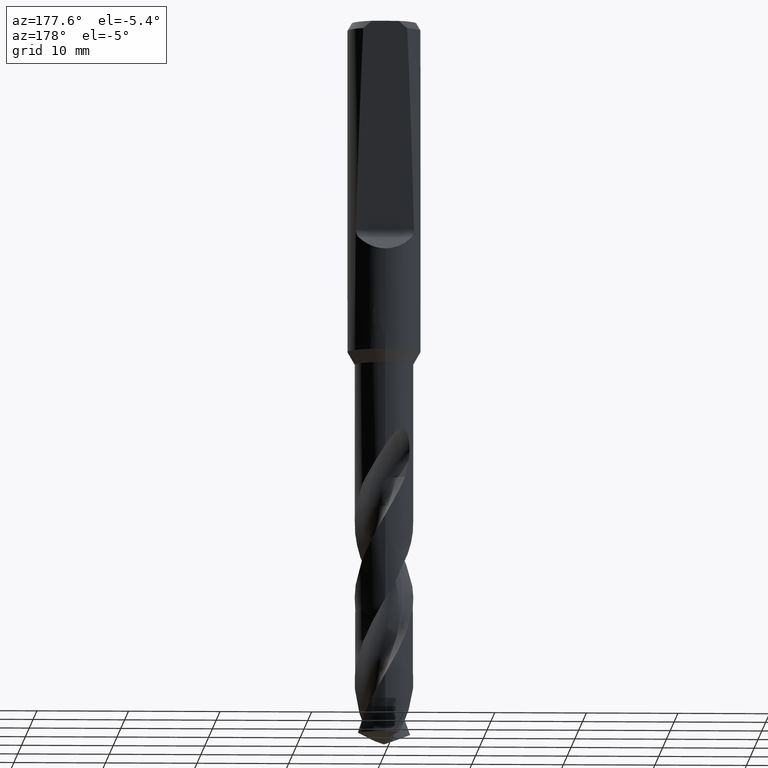
[diagram: clean part render]
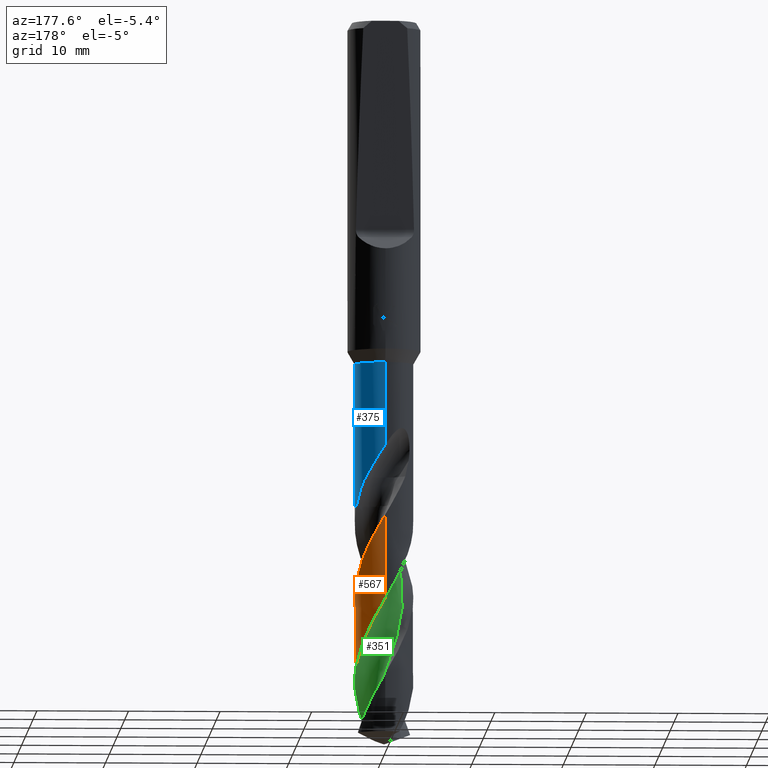
[diagram: same view with three faces highlighted in distinct colors, each labeled with its STEP entity id]
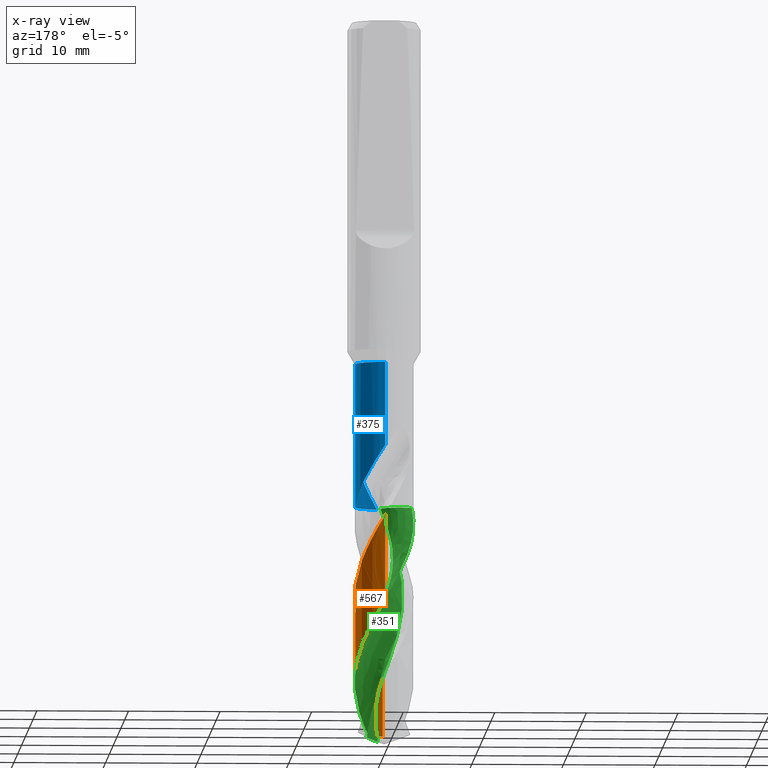
[diagram: x-ray of the same camera — body ghosted, the three highlighted faces saturated]
A machine part, auxiliary view with three faces highlighted in distinct colors.
The next image is the same camera in x-ray (body ghosted, the three faces saturated) — at least one of them is partly hidden behind the body in this view.
Their STEP definitions:

[orange] entity #567 — the highlighted conical surface has half-angle 0 deg.
#315=EDGE_CURVE('',#421,#663,#878,.T.);
#345=VERTEX_POINT('',#909);
#421=VERTEX_POINT('',#995);
#425=VERTEX_POINT('',#999);
#567=ADVANCED_FACE('',(#1154),#1155,.T.);
#647=EDGE_CURVE('',#345,#727,#1241,.T.);
#663=VERTEX_POINT('',#1259);
#707=EDGE_CURVE('',#421,#727,#1308,.T.);
#727=VERTEX_POINT('',#1328);
#803=EDGE_CURVE('',#345,#425,#1414,.T.);
#845=EDGE_CURVE('',#425,#663,#1459,.T.);
#878=B_SPLINE_CURVE_WITH_KNOTS('',3,(#1517,#1518,#1519,#1520,#1521,#1522,#1523,#1524,#1525,#1526,#1527,#1528,#1529,#1530,#1531,#1532,#1533,#1534,#1535,#1536,#1537,#1538,#1539,#1540,#1541,#1542,#1543,#1544,#1545,#1546,#1547,#1548,#1549,#1550,#1551,#1552,#1553,#1554,#1555,#1556,#1557,#1558,#1559,#1560,#1561,#1562,#1563,#1564,#1565,#1566,#1567,#1568,#1569,#1570,#1571,#1572),.UNSPECIFIED.,.F.,.F.,(4,2,2,2,2,2,2,2,2,2,2,2,2,2,2,2,2,2,2,2,2,2,2,2,2,2,2,4),(0.0,0.813135742674374,2.13053202998505,3.36430138883833,4.6047029717339,4.91015056957751,6.20430294889173,7.44521724852457,8.6823700772728,9.29613997921767,10.526970809379,11.7636191954917,13.0026054085505,13.6131402757504,14.846574973993,16.0782186525708,17.3188909090261,17.6233969685484,18.8514861820819,20.0916008174548,21.1629190742,22.1007487217106,22.9232671948386,24.3682178203722,25.4502440410329,26.2625478373165,27.4812539786613,28.7014202609204),.UNSPECIFIED.);
#909=CARTESIAN_POINT('',(1.56506095468349,-2.79116180256989,-77.8352952503482));
#995=CARTESIAN_POINT('',(1.88540665040708E-012,3.19990446080199,-54.1078533435553));
#999=CARTESIAN_POINT('',(3.91874033223161E-016,-3.2,-77.8352952503482));
#1154=FACE_OUTER_BOUND('',#4556,.T.);
#1155=CONICAL_SURFACE('',#4557,3.19995,4.0265275283276E-006);
#1241=B_SPLINE_CURVE_WITH_KNOTS('',3,(#5141,#5142,#5143,#5144,#5145,#5146,#5147,#5148,#5149,#5150,#5151,#5152,#5153,#5154,#5155,#5156,#5157,#5158,#5159,#5160,#5161,#5162,#5163,#5164,#5165,#5166,#5167,#5168,#5169,#5170,#5171,#5172,#5173,#5174,#5175,#5176,#5177,#5178,#5179,#5180,#5181,#5182,#5183,#5184,#5185,#5186,#5187,#5188,#5189,#5190,#5191,#5192,#5193,#5194,#5195,#5196,#5197,#5198),.UNSPECIFIED.,.F.,.F.,(4,2,2,2,2,2,2,2,2,2,2,2,2,2,2,2,2,2,2,2,2,2,2,2,2,2,2,2,4),(0.0,1.74940168802376,2.37102620344011,3.44891704909201,4.69060824313609,5.30911320623194,6.3615110119511,7.41395978823827,8.46742254103685,9.52095837339549,10.5754969390482,11.6301060499284,12.6856990762849,13.741427591656,14.7980984140047,15.8550222059876,16.9128409266213,17.441619087609,18.0408822280805,19.113276263985,20.1778847368928,21.254492548873,22.1964602354034,23.8503936351746,24.1598024192766,25.3250618430312,27.0717461056621,27.5091163977221,28.8156616674271),.UNSPECIFIED.);
#1259=CARTESIAN_POINT('',(1.37404529048283E-014,-3.19997447921192,-71.4971321811094));
#1308=LINE('',#5642,#5643);
#1328=CARTESIAN_POINT('',(2.46839838348566E-015,3.19994135975014,-63.2718160608587));
#1414=CIRCLE('',#7222,3.2);
#1459=LINE('',#7537,#7538);
#1517=CARTESIAN_POINT('',(-0.633612031397591,3.13654202994907,-53.0039570376097));
#1518=CARTESIAN_POINT('',(-0.50047796357747,3.16343737154317,-53.2385151046422));
#1519=CARTESIAN_POINT('',(-0.365937555210257,3.18179408635589,-53.4730731272108));
#1520=CARTESIAN_POINT('',(-0.0119156544872241,3.20740031506806,-54.088022288053));
#1521=CARTESIAN_POINT('',(0.20820646837728,3.20068307892087,-54.4666158408988));
#1522=CARTESIAN_POINT('',(0.630117546202206,3.14400262747359,-55.2025188393893));
#1523=CARTESIAN_POINT('',(0.83092762292468,3.09697862783589,-55.5578187479544));
#1524=CARTESIAN_POINT('',(1.22156998396136,2.96478640225245,-56.2717434211333));
#1525=CARTESIAN_POINT('',(1.41063537371222,2.87965303516914,-56.6286651101419));
#1526=CARTESIAN_POINT('',(1.63447523699915,2.75146387891423,-57.0745455465356));
#1527=CARTESIAN_POINT('',(1.67808202289325,2.7250879090107,-57.1626040847284));
#1528=CARTESIAN_POINT('',(1.90303442190992,2.58157759655928,-57.6240886503157));
#1529=CARTESIAN_POINT('',(2.07283759159168,2.44733475043842,-57.997038360358));
#1530=CARTESIAN_POINT('',(2.37643084034072,2.15289156114255,-58.7284688051675));
#1531=CARTESIAN_POINT('',(2.51066002040579,1.99472153052069,-59.0853480477501));
#1532=CARTESIAN_POINT('',(2.74628266313385,1.65530013615568,-59.8004824108073));
#1533=CARTESIAN_POINT('',(2.84730484473702,1.47479612219902,-60.1566835017866));
#1534=CARTESIAN_POINT('',(2.9714162444862,1.19194578288655,-60.6906829820841));
#1535=CARTESIAN_POINT('',(3.00803008758397,1.09626462377836,-60.8675697365068));
#1536=CARTESIAN_POINT('',(3.10407743390568,0.804001446026781,-61.3998991161258));
#1537=CARTESIAN_POINT('',(3.1492710431214,0.60321001139205,-61.7545612575885));
#1538=CARTESIAN_POINT('',(3.20066989425852,0.194681058057243,-62.4665607782773));
#1539=CARTESIAN_POINT('',(3.20655535325835,-0.0120106267127466,-62.8223921092555));
#1540=CARTESIAN_POINT('',(3.17846450155753,-0.423891804206506,-63.5369185203465));
#1541=CARTESIAN_POINT('',(3.1444684212994,-0.628267762146334,-63.8936072704662));
#1542=CARTESIAN_POINT('',(3.06459508627317,-0.926442023419833,-64.4272644337027));
#1543=CARTESIAN_POINT('',(3.03355290861798,-1.02351544066002,-64.6033068101128));
#1544=CARTESIAN_POINT('',(2.92602095090124,-1.31163663517767,-65.135519848685));
#1545=CARTESIAN_POINT('',(2.83564814137929,-1.49705005189527,-65.4908554592941));
#1546=CARTESIAN_POINT('',(2.62061157306036,-1.84779586912101,-66.2021904199099));
#1547=CARTESIAN_POINT('',(2.49657152341043,-2.01222111796973,-66.5567703679459));
#1548=CARTESIAN_POINT('',(2.21778844500692,-2.31602177747876,-67.270377328585));
#1549=CARTESIAN_POINT('',(2.06337610996633,-2.45460758959417,-67.6274839157796));
#1550=CARTESIAN_POINT('',(1.85565205230154,-2.6074675634622,-68.0733511415022));
#1551=CARTESIAN_POINT('',(1.81401676654827,-2.63660286758218,-68.1611914269788));
#1552=CARTESIAN_POINT('',(1.60109700943933,-2.77817002037985,-68.6035360379044));
#1553=CARTESIAN_POINT('',(1.41994249151425,-2.87498544368542,-68.9575685746527));
#1554=CARTESIAN_POINT('',(1.03971152394727,-3.03341770468427,-69.6699364817729));
#1555=CARTESIAN_POINT('',(0.841453395702855,-3.09427544110152,-70.0266932818044));
#1556=CARTESIAN_POINT('',(0.463674602862033,-3.17123835116337,-70.6939581470714));
#1557=CARTESIAN_POINT('',(0.285831974313675,-3.1921940749956,-71.0027300353703));
#1558=CARTESIAN_POINT('',(-0.0493513132984552,-3.20342153161308,-71.5825916767762));
#1559=CARTESIAN_POINT('',(-0.205925296305768,-3.19717285052562,-71.8527373441145));
#1560=CARTESIAN_POINT('',(-0.497692962143518,-3.16401421296279,-72.3609309549907));
#1561=CARTESIAN_POINT('',(-0.632916237516406,-3.13976514931146,-72.5982154170917));
#1562=CARTESIAN_POINT('',(-1.00032763527284,-3.04916035905565,-73.2527189460532));
#1563=CARTESIAN_POINT('',(-1.22711367410606,-2.96515907504653,-73.6679695523078));
#1564=CARTESIAN_POINT('',(-1.60335714454745,-2.77519868342497,-74.3975415995269));
#1565=CARTESIAN_POINT('',(-1.75735383903597,-2.6803446791092,-74.7094187616898));
#1566=CARTESIAN_POINT('',(-2.01159822538556,-2.49234642842497,-75.2562016143889));
#1567=CARTESIAN_POINT('',(-2.11537053254113,-2.40489525157113,-75.4903553617051));
#1568=CARTESIAN_POINT('',(-2.3601512574604,-2.17048368351667,-76.0766540745139));
#1569=CARTESIAN_POINT('',(-2.4933448469521,-2.01608943470588,-76.4276228980693));
#1570=CARTESIAN_POINT('',(-2.72881487651725,-1.68376719187941,-77.1314769541711));
#1571=CARTESIAN_POINT('',(-2.83031684824925,-1.50685246163005,-77.4828408488554));
#1572=CARTESIAN_POINT('',(-2.91426680449317,-1.32175980882653,-77.8352952503482));
#4556=EDGE_LOOP('',(#7852,#7853,#7854,#7855,#7856));
#4557=AXIS2_PLACEMENT_3D('',#7857,#7858,#7859);
#5141=CARTESIAN_POINT('',(1.56506095468349,-2.79116180256989,-77.8352952503482));
#5142=CARTESIAN_POINT('',(1.82056189984708,-2.64789492007469,-77.3310740607161));
#5143=CARTESIAN_POINT('',(2.05438092006894,-2.47074181185954,-76.8219938607978));
#5144=CARTESIAN_POINT('',(2.33414642643894,-2.19145117012083,-76.1385492911507));
#5145=CARTESIAN_POINT('',(2.40389641594779,-2.11470504971753,-75.9597086339225));
#5146=CARTESIAN_POINT('',(2.58408359027248,-1.89598379240943,-75.4698593050294));
#5147=CARTESIAN_POINT('',(2.68645992889031,-1.74791315352892,-75.1583103730833));
#5148=CARTESIAN_POINT('',(2.87896756443427,-1.41222183755426,-74.4897578018721));
#5149=CARTESIAN_POINT('',(2.96422838036837,-1.22310901501035,-74.1341824598941));
#5150=CARTESIAN_POINT('',(3.06365742600034,-0.929784271737763,-73.59774888542));
#5151=CARTESIAN_POINT('',(3.09196134040399,-0.830825087158384,-73.4189010878489));
#5152=CARTESIAN_POINT('',(3.15548462487037,-0.559915672692333,-72.9369879420616));
#5153=CARTESIAN_POINT('',(3.1814472356379,-0.386131895075275,-72.635030016988));
#5154=CARTESIAN_POINT('',(3.20459348050442,-0.0356698045718321,-72.0284803303503));
#5155=CARTESIAN_POINT('',(3.20170325226808,0.140009173047971,-71.7242620379302));
#5156=CARTESIAN_POINT('',(3.16728859403223,0.488705151033034,-71.117509501174));
#5157=CARTESIAN_POINT('',(3.13575688889181,0.661579892909078,-70.8155293051259));
#5158=CARTESIAN_POINT('',(3.04452304824646,1.00076334742926,-70.208959334366));
#5159=CARTESIAN_POINT('',(2.98506973878401,1.16611323523204,-69.9047334522484));
#5160=CARTESIAN_POINT('',(2.83992394938294,1.48503742388688,-69.2979677110304));
#5161=CARTESIAN_POINT('',(2.75426869606228,1.63848050176175,-68.9959886150988));
#5162=CARTESIAN_POINT('',(2.55841314516068,1.93005830971772,-68.3894127384954));
#5163=CARTESIAN_POINT('',(2.44876026301433,2.0673613647316,-68.0851840276795));
#5164=CARTESIAN_POINT('',(2.20844728357309,2.32232901119771,-67.4784269154718));
#5165=CARTESIAN_POINT('',(2.07785304139814,2.43989561824326,-67.1764560488737));
#5166=CARTESIAN_POINT('',(1.79836367841916,2.6526296868732,-66.5698839174264));
#5167=CARTESIAN_POINT('',(1.65025499077395,2.74718377092106,-66.2656542495411));
#5168=CARTESIAN_POINT('',(1.34051952094196,2.91091166780714,-65.6589038483797));
#5169=CARTESIAN_POINT('',(1.17897360209985,2.9800230039082,-65.356942006668));
#5170=CARTESIAN_POINT('',(0.845761626127121,3.0911490203371,-64.7503694239527));
#5171=CARTESIAN_POINT('',(0.675038581313684,3.13283283510656,-64.4461424021558));
#5172=CARTESIAN_POINT('',(0.329008847735328,3.18780616580405,-63.8393726333003));
#5173=CARTESIAN_POINT('',(0.153795055210287,3.20106511283419,-63.5374065099696));
#5174=CARTESIAN_POINT('',(-0.109593542663238,3.1992678953613,-63.0825629499984));
#5175=CARTESIAN_POINT('',(-0.197199535802622,3.19505779494631,-62.9311077348302));
#5176=CARTESIAN_POINT('',(-0.383243118265306,3.17845533053852,-62.6074402945216));
#5177=CARTESIAN_POINT('',(-0.48168298426226,3.16503814796274,-62.4349051975114));
#5178=CARTESIAN_POINT('',(-0.754397498166686,3.114822729411,-61.9549025944604));
#5179=CARTESIAN_POINT('',(-0.926467055254245,3.06805735970893,-61.648582934386));
#5180=CARTESIAN_POINT('',(-1.26006970065796,2.94670436348787,-61.0353559238792));
#5181=CARTESIAN_POINT('',(-1.42076026442194,2.87265548920776,-60.7287755507379));
#5182=CARTESIAN_POINT('',(-1.72979750618374,2.69799929479152,-60.114371955214));
#5183=CARTESIAN_POINT('',(-1.87765357813961,2.59728557931954,-59.8070726508925));
#5184=CARTESIAN_POINT('',(-2.13783725893071,2.38613139392148,-59.2282153790665));
#5185=CARTESIAN_POINT('',(-2.25170632315744,2.27895623679355,-58.9572400202705));
#5186=CARTESIAN_POINT('',(-2.54229215178517,1.96244467854776,-58.2130528193486));
#5187=CARTESIAN_POINT('',(-2.70065781441417,1.73801431109222,-57.7445569685405));
#5188=CARTESIAN_POINT('',(-2.85243423447385,1.45110413712884,-57.1817217061234));
#5189=CARTESIAN_POINT('',(-2.87523175904423,1.40539003383664,-57.0929359044713));
#5190=CARTESIAN_POINT('',(-2.97871463469696,1.1848120737115,-56.6703095697937));
#5191=CARTESIAN_POINT('',(-3.04472566843683,1.00320623749308,-56.338457245988));
#5192=CARTESIAN_POINT('',(-3.16790632688852,0.536351853862689,-55.5051538144765));
#5193=CARTESIAN_POINT('',(-3.20341276277142,0.247728273522946,-55.0042894594526));
#5194=CARTESIAN_POINT('',(-3.19868742946261,-0.114233325452999,-54.3791705181686));
#5195=CARTESIAN_POINT('',(-3.19527871722528,-0.186652137422215,-54.2541573153644));
#5196=CARTESIAN_POINT('',(-3.17189644008454,-0.474686414451072,-53.755075640491));
#5197=CARTESIAN_POINT('',(-3.13263748342002,-0.687484608067484,-53.3777290260439));
#5198=CARTESIAN_POINT('',(-3.07220929770677,-0.894924670593775,-53.0048489841364));
#5642=CARTESIAN_POINT('',(-3.9227480931991E-016,3.19995,-65.4176476251741));
#5643=VECTOR('',#8009,1.0);
#7222=AXIS2_PLACEMENT_3D('',#8106,#8107,#8108);
#7537=CARTESIAN_POINT('',(3.91461011062873E-016,-3.19995,-65.4176476251741));
#7538=VECTOR('',#8141,1.0);
#7852=ORIENTED_EDGE('',*,*,#707,.F.);
#7853=ORIENTED_EDGE('',*,*,#315,.T.);
#7854=ORIENTED_EDGE('',*,*,#845,.F.);
#7855=ORIENTED_EDGE('',*,*,#803,.F.);
#7856=ORIENTED_EDGE('',*,*,#647,.T.);
#7857=CARTESIAN_POINT('',(0.0,0.0,-65.4176476251741));
#7858=DIRECTION('',(0.0,-0.0,-1.0));
#7859=DIRECTION('',(0.0,1.0,0.0));
#8009=DIRECTION('',(-4.93091119501737E-022,4.02652752831672E-006,-0.999999999991894));
#8106=CARTESIAN_POINT('',(0.0,0.0,-77.8352952503482));
#8107=DIRECTION('',(0.0,0.0,-1.0));
#8108=DIRECTION('',(0.0,1.0,0.0));
#8141=DIRECTION('',(-4.93091119501737E-022,4.02652752831672E-006,0.999999999991894));

[blue] entity #375 — the highlighted cylindrical surface (edge-blend (fillet) strip) has radius 3.2 mm, axis along (-0, -0, 1).
#309=VERTEX_POINT('',#872);
#327=EDGE_CURVE('',#455,#517,#890,.T.);
#329=VERTEX_POINT('',#892);
#375=ADVANCED_FACE('',(#944),#945,.T.);
#411=EDGE_CURVE('',#329,#523,#985,.T.);
#443=EDGE_CURVE('',#509,#517,#1019,.T.);
#451=EDGE_CURVE('',#523,#661,#1028,.T.);
#455=VERTEX_POINT('',#1033);
#479=VERTEX_POINT('',#1058);
#509=VERTEX_POINT('',#1091);
#517=VERTEX_POINT('',#1099);
#523=VERTEX_POINT('',#1107);
#545=EDGE_CURVE('',#479,#329,#1132,.T.);
#575=EDGE_CURVE('',#455,#309,#1163,.T.);
#593=EDGE_CURVE('',#479,#309,#1183,.T.);
#635=EDGE_CURVE('',#713,#661,#1228,.T.);
#661=VERTEX_POINT('',#1257);
#713=VERTEX_POINT('',#1314);
#833=EDGE_CURVE('',#713,#509,#1445,.T.);
#872=CARTESIAN_POINT('',(3.91874033223161E-016,-3.2,-37.3856406460551));
#890=LINE('',#1595,#1596);
#892=CARTESIAN_POINT('',(2.60365492250826,-1.86037121147864,-48.0911432665525));
#944=FACE_OUTER_BOUND('',#2994,.T.);
#945=CYLINDRICAL_SURFACE('',#2995,3.2);
#985=B_SPLINE_CURVE_WITH_KNOTS('',3,(#3474,#3475,#3476,#3477),.UNSPECIFIED.,.F.,.F.,(4,4),(0.0,1.8391036855062),.UNSPECIFIED.);
#1019=B_SPLINE_CURVE_WITH_KNOTS('',3,(#3532,#3533,#3534,#3535,#3536,#3537,#3538,#3539,#3540,#3541,#3542,#3543,#3544,#3545,#3546,#3547,#3548,#3549,#3550,#3551,#3552,#3553,#3554,#3555,#3556,#3557,#3558,#3559,#3560,#3561),.UNSPECIFIED.,.F.,.F.,(4,2,2,2,2,2,2,2,2,2,2,2,2,2,4),(0.0,1.56782231376,2.42388938405478,3.19927080225604,4.10007757764711,5.18215244997258,6.12000526879567,6.5450079156102,6.85563302697524,7.14957522535136,7.52245842678693,8.06800167476919,8.84355554515743,9.35107348326668,9.88444037118558),.UNSPECIFIED.);
#1028=B_SPLINE_CURVE_WITH_KNOTS('',3,(#3585,#3586,#3587,#3588,#3589,#3590,#3591,#3592),.UNSPECIFIED.,.F.,.F.,(4,2,2,4),(0.0,0.784464466970107,1.49816144602488,3.29542581585252),.UNSPECIFIED.);
#1033=CARTESIAN_POINT('',(0.0,3.2,-37.3856406460551));
#1058=CARTESIAN_POINT('',(9.49214578466195E-013,-3.2,-46.4418682923582));
#1091=CARTESIAN_POINT('',(2.03908941204373,2.46619430898929,-49.8434));
#1099=CARTESIAN_POINT('',(-9.47882310836645E-013,3.2,-46.4418682923582));
#1107=CARTESIAN_POINT('',(2.22424749566831,-2.30059189731975,-49.8434));
#1132=B_SPLINE_CURVE_WITH_KNOTS('',3,(#4375,#4376,#4377,#4378,#4379,#4380,#4381,#4382,#4383,#4384,#4385,#4386,#4387,#4388,#4389,#4390,#4391,#4392,#4393,#4394,#4395,#4396,#4397,#4398,#4399,#4400,#4401,#4402,#4403,#4404),.UNSPECIFIED.,.F.,.F.,(4,2,2,2,2,2,2,2,2,2,2,2,2,2,4),(0.0,1.56782231376001,2.4238893840547,3.1992708022558,4.10007757764716,5.18215244997313,6.12000526879655,6.54500791561114,6.85563302697629,7.14957522535255,7.52245842678827,8.06800167477267,8.84355554516768,9.35107348328173,9.88444037120564),.UNSPECIFIED.);
#1163=CIRCLE('',#4574,3.2);
#1183=LINE('',#4595,#4596);
#1228=CIRCLE('',#4873,3.2);
#1257=CARTESIAN_POINT('',(0.63588482973571,-3.1361840640039,-53.0));
#1314=CARTESIAN_POINT('',(3.07150665534225,0.897689738266098,-53.0));
#1445=B_SPLINE_CURVE_WITH_KNOTS('',3,(#7511,#7512,#7513,#7514,#7515,#7516,#7517,#7518,#7519,#7520),.UNSPECIFIED.,.F.,.F.,(4,2,2,2,4),(0.0,1.85208206593052,2.44590199487501,2.92950370821524,3.35211331927707),.UNSPECIFIED.);
#1595=CARTESIAN_POINT('',(-3.91874033223161E-016,3.2,-45.1928203230275));
#1596=VECTOR('',#7555,1.0);
#2994=EDGE_LOOP('',(#7625,#7626,#7627,#7628,#7629,#7630,#7631,#7632,#7633));
#2995=AXIS2_PLACEMENT_3D('',#7634,#7635,#7636);
#3474=CARTESIAN_POINT('',(2.60365492256088,-1.86037121140499,-48.0911432665814));
#3475=CARTESIAN_POINT('',(2.50048955998773,-2.0047547637061,-48.6779325573791));
#3476=CARTESIAN_POINT('',(2.3761477232539,-2.15373242989646,-49.2682138070278));
#3477=CARTESIAN_POINT('',(2.22424749566831,-2.30059189731975,-49.8434));
#3532=CARTESIAN_POINT('',(2.03908941204373,2.46619430898929,-49.8434));
#3533=CARTESIAN_POINT('',(1.82800567805744,2.64072176023562,-49.3983130869401));
#3534=CARTESIAN_POINT('',(1.58530715369426,2.79586454757279,-48.983348576287));
#3535=CARTESIAN_POINT('',(1.16211325690762,2.98602454372156,-48.2901219086283));
#3536=CARTESIAN_POINT('',(1.00982828565799,3.04072636046146,-48.0462215655824));
#3537=CARTESIAN_POINT('',(0.715023821655987,3.122480120881,-47.5740936955324));
#3538=CARTESIAN_POINT('',(0.573820631320099,3.1513635316966,-47.3480668416116));
#3539=CARTESIAN_POINT('',(0.268175200748505,3.19304942932217,-46.8609189318241));
#3540=CARTESIAN_POINT('',(0.101179909619378,3.20283613125281,-46.5959847266246));
#3541=CARTESIAN_POINT('',(-0.269673865903409,3.1950353626123,-46.0292030328951));
#3542=CARTESIAN_POINT('',(-0.489552675420427,3.17090772647207,-45.7066980519819));
#3543=CARTESIAN_POINT('',(-0.913560527382516,3.07346880415289,-45.1749095931623));
#3544=CARTESIAN_POINT('',(-1.1481471079517,2.9992326530209,-44.9154176372088));
#3545=CARTESIAN_POINT('',(-1.50319157987628,2.82763812479161,-44.6724295722979));
#3546=CARTESIAN_POINT('',(-1.62071363798307,2.76285725044015,-44.6123775031602));
#3547=CARTESIAN_POINT('',(-1.82663930203465,2.62947183507241,-44.5662467612278));
#3548=CARTESIAN_POINT('',(-1.91110098015603,2.56872711588606,-44.5653853979539));
#3549=CARTESIAN_POINT('',(-2.06841541691173,2.44360567542679,-44.6057594451824));
#3550=CARTESIAN_POINT('',(-2.13721690172617,2.38317451791265,-44.6436136909456));
#3551=CARTESIAN_POINT('',(-2.27722715935141,2.25074435739277,-44.7620552641219));
#3552=CARTESIAN_POINT('',(-2.34200224069986,2.18211572470508,-44.8495030551746));
#3553=CARTESIAN_POINT('',(-2.47468255117505,2.03226008390363,-45.0889622599872));
#3554=CARTESIAN_POINT('',(-2.53810109542421,1.95065296980375,-45.2665702252403));
#3555=CARTESIAN_POINT('',(-2.65735732010007,1.78678691936196,-45.7634975594316));
#3556=CARTESIAN_POINT('',(-2.70047120201694,1.71698786927453,-46.1174025482044));
#3557=CARTESIAN_POINT('',(-2.72181085940623,1.68285447465253,-46.7723943380162));
#3558=CARTESIAN_POINT('',(-2.71679327525594,1.69117410393097,-47.0332449366901));
#3559=CARTESIAN_POINT('',(-2.68135347056868,1.74685067707177,-47.5626413200452));
#3560=CARTESIAN_POINT('',(-2.64970993141206,1.7959156071892,-47.829194490778));
#3561=CARTESIAN_POINT('',(-2.60365492250826,1.86037121147864,-48.0911432665525));
#3585=CARTESIAN_POINT('',(2.2242474956683,-2.30059189731975,-49.8434));
#3586=CARTESIAN_POINT('',(2.13494642048418,-2.38692954506605,-50.0735025512708));
#3587=CARTESIAN_POINT('',(2.03789861191544,-2.47107584600038,-50.304722016858));
#3588=CARTESIAN_POINT('',(1.82638447958038,-2.63063688784129,-50.7565361037738));
#3589=CARTESIAN_POINT('',(1.7189974749625,-2.70256703984752,-50.9724619803909));
#3590=CARTESIAN_POINT('',(1.3010133127431,-2.94392907639697,-51.8020229385631));
#3591=CARTESIAN_POINT('',(0.975236455265601,-3.06737797793982,-52.4020631832931));
#3592=CARTESIAN_POINT('',(0.63588482973574,-3.13618406400388,-53.0));
#4375=CARTESIAN_POINT('',(-2.03908941204373,-2.46619430898929,-49.8434));
#4376=CARTESIAN_POINT('',(-1.82800567805744,-2.64072176023561,-49.3983130869401));
#4377=CARTESIAN_POINT('',(-1.58530715369426,-2.79586454757279,-48.983348576287));
#4378=CARTESIAN_POINT('',(-1.16211325690765,-2.98602454372155,-48.2901219086283));
#4379=CARTESIAN_POINT('',(-1.00982828565803,-3.04072636046145,-48.0462215655825));
#4380=CARTESIAN_POINT('',(-0.715023821655965,-3.122480120881,-47.5740936955324));
#4381=CARTESIAN_POINT('',(-0.573820631320053,-3.1513635316966,-47.3480668416116));
#4382=CARTESIAN_POINT('',(-0.268175200748478,-3.19304942932217,-46.860918931824));
#4383=CARTESIAN_POINT('',(-0.101179909619363,-3.2028361312528,-46.5959847266246));
#4384=CARTESIAN_POINT('',(0.269673865903414,-3.1950353626123,-46.0292030328951));
#4385=CARTESIAN_POINT('',(0.489552675420427,-3.17090772647206,-45.7066980519819));
#4386=CARTESIAN_POINT('',(0.913560527382492,-3.07346880415289,-45.1749095931624));
#4387=CARTESIAN_POINT('',(1.1481471079517,-2.99923265302091,-44.9154176372088));
#4388=CARTESIAN_POINT('',(1.50319157987626,-2.82763812479162,-44.672429572298));
#4389=CARTESIAN_POINT('',(1.62071363798306,-2.76285725044016,-44.6123775031602));
#4390=CARTESIAN_POINT('',(1.82663930203468,-2.62947183507239,-44.5662467612278));
#4391=CARTESIAN_POINT('',(1.91110098015605,-2.56872711588605,-44.5653853979539));
#4392=CARTESIAN_POINT('',(2.06841541691173,-2.44360567542679,-44.6057594451824));
#4393=CARTESIAN_POINT('',(2.13721690172617,-2.38317451791265,-44.6436136909457));
#4394=CARTESIAN_POINT('',(2.2772271593514,-2.25074435739278,-44.7620552641219));
#4395=CARTESIAN_POINT('',(2.34200224069985,-2.18211572470509,-44.8495030551746));
#4396=CARTESIAN_POINT('',(2.47468255117535,-2.03226008390329,-45.0889622599878));
#4397=CARTESIAN_POINT('',(2.53810109542441,-1.95065296980348,-45.2665702252411));
#4398=CARTESIAN_POINT('',(2.65735732010013,-1.78678691936188,-45.7634975594319));
#4399=CARTESIAN_POINT('',(2.70047120201695,-1.71698786927451,-46.1174025482047));
#4400=CARTESIAN_POINT('',(2.72181085940624,-1.68285447465253,-46.7723943380162));
#4401=CARTESIAN_POINT('',(2.71679327525594,-1.69117410393097,-47.0332449366901));
#4402=CARTESIAN_POINT('',(2.68135347056868,-1.74685067707176,-47.5626413200452));
#4403=CARTESIAN_POINT('',(2.64970993141206,-1.79591560718919,-47.829194490778));
#4404=CARTESIAN_POINT('',(2.60365492250827,-1.86037121147863,-48.0911432665525));
#4574=AXIS2_PLACEMENT_3D('',#7860,#7861,#7862);
#4595=CARTESIAN_POINT('',(3.91874033223161E-016,-3.2,-45.1928203230275));
#4596=VECTOR('',#7890,1.0);
#4873=AXIS2_PLACEMENT_3D('',#7932,#7933,#7934);
#7511=CARTESIAN_POINT('',(3.07150665534227,0.897689738266082,-53.0));
#7512=CARTESIAN_POINT('',(2.9846668266099,1.19481813411411,-52.4658579024184));
#7513=CARTESIAN_POINT('',(2.85747755515703,1.47208944691112,-51.9612127627791));
#7514=CARTESIAN_POINT('',(2.64094431405988,1.80966676621431,-51.2451287128119));
#7515=CARTESIAN_POINT('',(2.5855751068898,1.88777208729367,-51.0711230435397));
#7516=CARTESIAN_POINT('',(2.48072087335368,2.02284820034371,-50.7523845390535));
#7517=CARTESIAN_POINT('',(2.42701189521319,2.0902545519695,-50.5832193112961));
#7518=CARTESIAN_POINT('',(2.24752275905572,2.281133871533,-50.1854979258746));
#7519=CARTESIAN_POINT('',(2.15102117251406,2.37364731590989,-50.0112286621488));
#7520=CARTESIAN_POINT('',(2.03908941204373,2.46619430898929,-49.8434));
#7555=DIRECTION('',(0.0,0.0,-1.0));
#7625=ORIENTED_EDGE('',*,*,#327,.F.);
#7626=ORIENTED_EDGE('',*,*,#575,.T.);
#7627=ORIENTED_EDGE('',*,*,#593,.F.);
#7628=ORIENTED_EDGE('',*,*,#545,.T.);
#7629=ORIENTED_EDGE('',*,*,#411,.T.);
#7630=ORIENTED_EDGE('',*,*,#451,.T.);
#7631=ORIENTED_EDGE('',*,*,#635,.F.);
#7632=ORIENTED_EDGE('',*,*,#833,.T.);
#7633=ORIENTED_EDGE('',*,*,#443,.T.);
#7634=CARTESIAN_POINT('',(0.0,0.0,-45.1928203230275));
#7635=DIRECTION('',(-0.0,-0.0,1.0));
#7636=DIRECTION('',(0.0,1.0,0.0));
#7860=CARTESIAN_POINT('',(0.0,0.0,-37.3856406460551));
#7861=DIRECTION('',(0.0,0.0,-1.0));
#7862=DIRECTION('',(0.0,1.0,0.0));
#7890=DIRECTION('',(-0.0,-0.0,1.0));
#7932=CARTESIAN_POINT('',(0.0,0.0,-53.0));
#7933=DIRECTION('',(0.0,0.0,-1.0));
#7934=DIRECTION('',(0.0,1.0,0.0));

[green] entity #351 — the highlighted face is a freeform B-spline surface patch.
#345=VERTEX_POINT('',#909);
#351=ADVANCED_FACE('',(#917),#918,.F.);
#503=EDGE_CURVE('',#709,#623,#1085,.T.);
#573=VERTEX_POINT('',#1161);
#623=VERTEX_POINT('',#1215);
#647=EDGE_CURVE('',#345,#727,#1241,.T.);
#667=EDGE_CURVE('',#623,#573,#1263,.T.);
#681=EDGE_CURVE('',#727,#709,#1277,.T.);
#683=EDGE_CURVE('',#573,#345,#1279,.T.);
#709=VERTEX_POINT('',#1310);
#727=VERTEX_POINT('',#1328);
#909=CARTESIAN_POINT('',(1.56506095468349,-2.79116180256989,-77.8352952503482));
#917=FACE_OUTER_BOUND('',#2067,.T.);
#918=B_SPLINE_SURFACE_WITH_KNOTS('',3,3,((#2068,#2069,#2070,#2071,#2072,#2073,#2074,#2075,#2076,#2077,#2078,#2079,#2080,#2081,#2082,#2083,#2084,#2085,#2086,#2087,#2088,#2089,#2090,#2091,#2092,#2093,#2094,#2095,#2096,#2097,#2098,#2099,#2100,#2101,#2102,#2103,#2104,#2105,#2106,#2107),(#2108,#2109,#2110,#2111,#2112,#2113,#2114,#2115,#2116,#2117,#2118,#2119,#2120,#2121,#2122,#2123,#2124,#2125,#2126,#2127,#2128,#2129,#2130,#2131,#2132,#2133,#2134,#2135,#2136,#2137,#2138,#2139,#2140,#2141,#2142,#2143,#2144,#2145,#2146,#2147),(#2148,#2149,#2150,#2151,#2152,#2153,#2154,#2155,#2156,#2157,#2158,#2159,#2160,#2161,#2162,#2163,#2164,#2165,#2166,#2167,#2168,#2169,#2170,#2171,#2172,#2173,#2174,#2175,#2176,#2177,#2178,#2179,#2180,#2181,#2182,#2183,#2184,#2185,#2186,#2187),(#2188,#2189,#2190,#2191,#2192,#2193,#2194,#2195,#2196,#2197,#2198,#2199,#2200,#2201,#2202,#2203,#2204,#2205,#2206,#2207,#2208,#2209,#2210,#2211,#2212,#2213,#2214,#2215,#2216,#2217,#2218,#2219,#2220,#2221,#2222,#2223,#2224,#2225,#2226,#2227),(#2228,#2229,#2230,#2231,#2232,#2233,#2234,#2235,#2236,#2237,#2238,#2239,#2240,#2241,#2242,#2243,#2244,#2245,#2246,#2247,#2248,#2249,#2250,#2251,#2252,#2253,#2254,#2255,#2256,#2257,#2258,#2259,#2260,#2261,#2262,#2263,#2264,#2265,#2266,#2267),(#2268,#2269,#2270,#2271,#2272,#2273,#2274,#2275,#2276,#2277,#2278,#2279,#2280,#2281,#2282,#2283,#2284,#2285,#2286,#2287,#2288,#2289,#2290,#2291,#2292,#2293,#2294,#2295,#2296,#2297,#2298,#2299,#2300,#2301,#2302,#2303,#2304,#2305,#2306,#2307),(#2308,#2309,#2310,#2311,#2312,#2313,#2314,#2315,#2316,#2317,#2318,#2319,#2320,#2321,#2322,#2323,#2324,#2325,#2326,#2327,#2328,#2329,#2330,#2331,#2332,#2333,#2334,#2335,#2336,#2337,#2338,#2339,#2340,#2341,#2342,#2343,#2344,#2345,#2346,#2347),(#2348,#2349,#2350,#2351,#2352,#2353,#2354,#2355,#2356,#2357,#2358,#2359,#2360,#2361,#2362,#2363,#2364,#2365,#2366,#2367,#2368,#2369,#2370,#2371,#2372,#2373,#2374,#2375,#2376,#2377,#2378,#2379,#2380,#2381,#2382,#2383,#2384,#2385,#2386,#2387),(#2388,#2389,#2390,#2391,#2392,#2393,#2394,#2395,#2396,#2397,#2398,#2399,#2400,#2401,#2402,#2403,#2404,#2405,#2406,#2407,#2408,#2409,#2410,#2411,#2412,#2413,#2414,#2415,#2416,#2417,#2418,#2419,#2420,#2421,#2422,#2423,#2424,#2425,#2426,#2427),(#2428,#2429,#2430,#2431,#2432,#2433,#2434,#2435,#2436,#2437,#2438,#2439,#2440,#2441,#2442,#2443,#2444,#2445,#2446,#2447,#2448,#2449,#2450,#2451,#2452,#2453,#2454,#2455,#2456,#2457,#2458,#2459,#2460,#2461,#2462,#2463,#2464,#2465,#2466,#2467),(#2468,#2469,#2470,#2471,#2472,#2473,#2474,#2475,#2476,#2477,#2478,#2479,#2480,#2481,#2482,#2483,#2484,#2485,#2486,#2487,#2488,#2489,#2490,#2491,#2492,#2493,#2494,#2495,#2496,#2497,#2498,#2499,#2500,#2501,#2502,#2503,#2504,#2505,#2506,#2507)),.UNSPECIFIED.,.F.,.F.,.F.,(4,1,1,1,1,1,1,1,4),(4,1,2,1,2,2,1,2,2,2,2,2,2,2,2,2,2,2,2,1,2,4),(-4.9810500537886E-017,0.392701502313419,0.785403004626838,1.17810450694026,1.57080600925368,1.9635075115671,2.35620901388052,2.74891051619393,3.14161201850735),(0.0,0.585841910817342,1.17168382163468,2.34336764326937,3.51505146490405,4.68673528653873,5.85841910817342,7.0301029298081,9.37347057307747,11.7168382163468,14.0602058596162,16.4035735028856,18.7469411461549,21.0903087894243,23.4336764326937,25.777044075963,28.1204117192324,30.4637793625018,32.8071470057711,33.9788308274058,35.1505146490405,37.4938822923099),.UNSPECIFIED.);
#1085=B_SPLINE_CURVE_WITH_KNOTS('',3,(#3801,#3802,#3803,#3804,#3805,#3806,#3807,#3808,#3809,#3810,#3811,#3812,#3813,#3814,#3815,#3816,#3817,#3818,#3819,#3820),.UNSPECIFIED.,.F.,.F.,(4,2,2,2,2,2,2,2,2,4),(-6.72026032333083,-6.27570797537203,-5.83106636899651,-4.99727497943318,-4.16358570287696,-3.33036646376902,-2.49771150598117,-1.66538247508298,-0.832941233495619,-0.0),.UNSPECIFIED.);
#1161=CARTESIAN_POINT('',(1.92118793493748,0.607151752545605,-78.2666567584257));
#1215=CARTESIAN_POINT('',(0.312969690143841,-1.98679250734108,-53.005));
#1241=B_SPLINE_CURVE_WITH_KNOTS('',3,(#5141,#5142,#5143,#5144,#5145,#5146,#5147,#5148,#5149,#5150,#5151,#5152,#5153,#5154,#5155,#5156,#5157,#5158,#5159,#5160,#5161,#5162,#5163,#5164,#5165,#5166,#5167,#5168,#5169,#5170,#5171,#5172,#5173,#5174,#5175,#5176,#5177,#5178,#5179,#5180,#5181,#5182,#5183,#5184,#5185,#5186,#5187,#5188,#5189,#5190,#5191,#5192,#5193,#5194,#5195,#5196,#5197,#5198),.UNSPECIFIED.,.F.,.F.,(4,2,2,2,2,2,2,2,2,2,2,2,2,2,2,2,2,2,2,2,2,2,2,2,2,2,2,2,4),(0.0,1.74940168802376,2.37102620344011,3.44891704909201,4.69060824313609,5.30911320623194,6.3615110119511,7.41395978823827,8.46742254103685,9.52095837339549,10.5754969390482,11.6301060499284,12.6856990762849,13.741427591656,14.7980984140047,15.8550222059876,16.9128409266213,17.441619087609,18.0408822280805,19.113276263985,20.1778847368928,21.254492548873,22.1964602354034,23.8503936351746,24.1598024192766,25.3250618430312,27.0717461056621,27.5091163977221,28.8156616674271),.UNSPECIFIED.);
#1263=B_SPLINE_CURVE_WITH_KNOTS('',3,(#5243,#5244,#5245,#5246,#5247,#5248,#5249,#5250,#5251,#5252,#5253,#5254,#5255,#5256,#5257,#5258,#5259,#5260,#5261,#5262,#5263,#5264,#5265,#5266,#5267,#5268,#5269,#5270,#5271,#5272,#5273,#5274,#5275,#5276,#5277,#5278,#5279,#5280,#5281,#5282),.UNSPECIFIED.,.F.,.F.,(4,1,2,1,2,2,1,2,2,2,2,2,2,2,2,2,2,2,2,1,2,4),(0.0,0.585841910817342,1.17168382163468,2.34336764326937,3.51505146490405,4.68673528653873,5.85841910817342,7.0301029298081,9.37347057307747,11.7168382163468,14.0602058596162,16.4035735028856,18.7469411461549,21.0903087894243,23.4336764326937,25.777044075963,28.1204117192324,30.4637793625018,32.8071470057711,33.9788308274058,35.1505146490405,37.4938822923099),.UNSPECIFIED.);
#1277=B_SPLINE_CURVE_WITH_KNOTS('',3,(#5313,#5314,#5315,#5316,#5317,#5318,#5319,#5320,#5321,#5322,#5323,#5324,#5325,#5326,#5327,#5328,#5329,#5330,#5331,#5332,#5333,#5334,#5335,#5336,#5337,#5338,#5339,#5340,#5341,#5342,#5343,#5344,#5345,#5346,#5347,#5348,#5349,#5350,#5351,#5352,#5353,#5354,#5355,#5356,#5357,#5358,#5359,#5360,#5361,#5362,#5363,#5364,#5365,#5366,#5367,#5368,#5369,#5370),.UNSPECIFIED.,.F.,.F.,(4,2,2,2,2,2,2,2,2,2,2,2,2,2,2,2,2,2,2,2,2,2,2,2,2,2,2,2,4),(0.0,1.74940168802376,2.37102620344011,3.44891704909201,4.69060824313609,5.30911320623194,6.3615110119511,7.41395978823827,8.46742254103685,9.52095837339549,10.5754969390482,11.6301060499284,12.6856990762849,13.741427591656,14.7980984140047,15.8550222059876,16.9128409266213,17.441619087609,18.0408822280805,19.113276263985,20.1778847368928,21.254492548873,22.1964602354034,23.8503936351746,24.1598024192766,25.3250618430312,27.0717461056621,27.5091163977221,28.8156616674271),.UNSPECIFIED.);
#1279=B_SPLINE_CURVE_WITH_KNOTS('',3,(#5373,#5374,#5375,#5376,#5377,#5378,#5379,#5380,#5381,#5382,#5383,#5384,#5385,#5386,#5387,#5388,#5389,#5390,#5391,#5392),.UNSPECIFIED.,.F.,.F.,(4,2,2,2,2,2,2,2,2,4),(0.0,1.33320127988847,2.23922703894659,3.0998419126518,4.06511171876227,5.11361253817238,6.2991774461191,7.62471460606944,8.42095739622094,9.21690306022706),.UNSPECIFIED.);
#1310=CARTESIAN_POINT('',(-3.07223377162265,-0.894840660158769,-53.005));
#1328=CARTESIAN_POINT('',(2.46839838348566E-015,3.19994135975014,-63.2718160608587));
#2067=EDGE_LOOP('',(#7590,#7591,#7592,#7593,#7594));
#2068=CARTESIAN_POINT('',(-1.50849446410357,-4.60182779410357,-49.8434));
#2069=CARTESIAN_POINT('',(-1.63109025783884,-4.59707265057927,-49.9951563446723));
#2070=CARTESIAN_POINT('',(-1.87889229740802,-4.56297691481441,-50.3001090048941));
#2071=CARTESIAN_POINT('',(-2.12681367927575,-4.46661286277624,-50.6060068888386));
#2072=CARTESIAN_POINT('',(-2.48910001861606,-4.26596148384399,-51.0612846586529));
#2073=CARTESIAN_POINT('',(-2.9466813257459,-3.96378798519062,-51.6663659072825));
#2074=CARTESIAN_POINT('',(-3.35289394739897,-3.60551673612712,-52.2734553733364));
#2075=CARTESIAN_POINT('',(-3.73030067113835,-3.22311455394038,-52.8829439808488));
#2076=CARTESIAN_POINT('',(-3.90257746908381,-3.01472889339144,-53.1872161924574));
#2077=CARTESIAN_POINT('',(-4.20684068289889,-2.56661925305841,-53.7935123667623));
#2078=CARTESIAN_POINT('',(-4.4762491609439,-2.09624829195499,-54.4007758802953));
#2079=CARTESIAN_POINT('',(-4.66594523075583,-1.58908520392533,-55.009039651618));
#2080=CARTESIAN_POINT('',(-4.88298287094366,-0.80767272580611,-55.9201960297232));
#2081=CARTESIAN_POINT('',(-4.94513717896724,-0.264987251721077,-56.5277352913956));
#2082=CARTESIAN_POINT('',(-4.88189457961558,0.814793900504577,-57.7429128803399));
#2083=CARTESIAN_POINT('',(-4.76502046041509,1.34836450241964,-58.350472613784));
#2084=CARTESIAN_POINT('',(-4.35615311091372,2.34962890446015,-59.5655782182454));
#2085=CARTESIAN_POINT('',(-4.07308016109549,2.8167853753158,-60.1731408527754));
#2086=CARTESIAN_POINT('',(-3.3623044996523,3.63202663990248,-61.3882581626841));
#2087=CARTESIAN_POINT('',(-2.94335063600732,3.98251949386093,-61.9958158234316));
#2088=CARTESIAN_POINT('',(-2.00717681583815,4.52413436657032,-63.2109420254975));
#2089=CARTESIAN_POINT('',(-1.49740951238165,4.72033062453232,-63.8185012124885));
#2090=CARTESIAN_POINT('',(-0.436409604865213,4.93015202798075,-65.0336166689603));
#2091=CARTESIAN_POINT('',(0.109421628578674,4.95097836971562,-65.6411780966433));
#2092=CARTESIAN_POINT('',(1.18128723763918,4.80638148076479,-66.8562938619842));
#2093=CARTESIAN_POINT('',(1.70452400861877,4.64956447381785,-67.4638524140932));
#2094=CARTESIAN_POINT('',(2.67203813243536,4.16614064031455,-68.6789776097951));
#2095=CARTESIAN_POINT('',(3.11645008503846,3.84856519457346,-69.2865374250222));
#2096=CARTESIAN_POINT('',(3.87568077996754,3.078307481049,-70.5016576772635));
#2097=CARTESIAN_POINT('',(4.19353016976221,2.63408565255694,-71.109213115877));
#2098=CARTESIAN_POINT('',(4.66287280659893,1.65963402260035,-72.3243137424664));
#2099=CARTESIAN_POINT('',(4.82002368068264,1.13647612309691,-72.9318989513987));
#2100=CARTESIAN_POINT('',(4.94892943685916,0.0626532528205517,-74.1470666236311));
#2101=CARTESIAN_POINT('',(4.92837184606817,-0.483065046954684,-74.754515872789));
#2102=CARTESIAN_POINT('',(4.7600845269587,-1.27652512101679,-75.665746918848));
#2103=CARTESIAN_POINT('',(4.60606045182558,-1.79589706400045,-76.2732974077196));
#2104=CARTESIAN_POINT('',(4.36848041576027,-2.28313889914145,-76.8811559986172));
#2105=CARTESIAN_POINT('',(3.94958088414265,-2.97833418070633,-77.7924480448367));
#2106=CARTESIAN_POINT('',(3.60068641210224,-3.39599627773787,-78.3987864350875));
#2107=CARTESIAN_POINT('',(3.19474746813034,-3.74901386704896,-79.006173610824));
#2108=CARTESIAN_POINT('',(-1.70594918342183,-4.40435715236517,-49.8433999999999));
#2109=CARTESIAN_POINT('',(-1.82883641649976,-4.39989342491202,-49.9951646043556));
#2110=CARTESIAN_POINT('',(-2.07397074993078,-4.36304944135986,-50.300287459551));
#2111=CARTESIAN_POINT('',(-2.3122332757575,-4.25760749926868,-50.6064528808133));
#2112=CARTESIAN_POINT('',(-2.65378095991474,-4.03971777504873,-51.0616546200486));
#2113=CARTESIAN_POINT('',(-3.08321497138918,-3.71862567045663,-51.6664124782228));
#2114=CARTESIAN_POINT('',(-3.46169438772804,-3.34791225391288,-52.2734309687024));
#2115=CARTESIAN_POINT('',(-3.81155667012019,-2.95554231845485,-52.8831855979597));
#2116=CARTESIAN_POINT('',(-3.96919280556422,-2.74308231007374,-53.1875270017072));
#2117=CARTESIAN_POINT('',(-4.24258872418854,-2.28921791353564,-53.7936481379269));
#2118=CARTESIAN_POINT('',(-4.4814662208997,-1.81580645985942,-54.4008701037863));
#2119=CARTESIAN_POINT('',(-4.64066572377886,-1.31054831456283,-55.0092318334898));
#2120=CARTESIAN_POINT('',(-4.8118350124511,-0.535871171231538,-55.9203628604062));
#2121=CARTESIAN_POINT('',(-4.84495232618045,-0.00249255617817285,-56.5278992451484));
#2122=CARTESIAN_POINT('',(-4.72667698636959,1.04898981266083,-57.7430849348488));
#2123=CARTESIAN_POINT('',(-4.58531841176444,1.56434287669195,-58.350644692687));
#2124=CARTESIAN_POINT('',(-4.13354929479332,2.52105465528268,-59.5657484081828));
#2125=CARTESIAN_POINT('',(-3.83319872715549,2.96306257335483,-60.1733114591049));
#2126=CARTESIAN_POINT('',(-3.09622374037544,3.72225361709498,-61.3884285147298));
#2127=CARTESIAN_POINT('',(-2.66905445579078,4.04335878646158,-61.9959858970378));
#2128=CARTESIAN_POINT('',(-1.726215729506,4.52347259215367,-63.2111130799127));
#2129=CARTESIAN_POINT('',(-1.21817674037564,4.68920578007172,-63.818672217095));
#2130=CARTESIAN_POINT('',(-0.17075558441134,4.83867854894713,-65.0337871286729));
#2131=CARTESIAN_POINT('',(0.363590364497459,4.83123581479094,-65.6413488010874));
#2132=CARTESIAN_POINT('',(1.40308651939286,4.63391450126419,-66.8564641305132));
#2133=CARTESIAN_POINT('',(1.90631195640998,4.45406125329165,-67.4640225683873));
#2134=CARTESIAN_POINT('',(2.82614923492448,3.93121636192617,-68.6791484906144));
#2135=CARTESIAN_POINT('',(3.24417797152362,3.59831484836696,-69.28670823882));
#2136=CARTESIAN_POINT('',(3.94555349363004,2.80617294239342,-70.5018289269764));
#2137=CARTESIAN_POINT('',(4.23347871656527,2.35597754449831,-71.109384117567));
#2138=CARTESIAN_POINT('',(4.64098642988958,1.37952557269311,-72.3244811841829));
#2139=CARTESIAN_POINT('',(4.76789313749396,0.860391438666087,-72.9320685058862));
#2140=CARTESIAN_POINT('',(4.83762917338548,-0.195324166717447,-74.1472472939542));
#2141=CARTESIAN_POINT('',(4.78975689401921,-0.727446586083773,-74.7546870458616));
#2142=CARTESIAN_POINT('',(4.58393998001254,-1.4937677697092,-75.6658962416751));
#2143=CARTESIAN_POINT('',(4.40669121622603,-1.99321068942014,-76.2734357420314));
#2144=CARTESIAN_POINT('',(4.14931287592082,-2.4568971961389,-76.8813437263385));
#2145=CARTESIAN_POINT('',(3.7034323777423,-3.11385903653935,-77.7926750049191));
#2146=CARTESIAN_POINT('',(3.34156768361818,-3.5043043843897,-78.3989196438355));
#2147=CARTESIAN_POINT('',(2.92711158476365,-3.8287260233419,-79.0063367160843));
#2148=CARTESIAN_POINT('',(-2.02224848891775,-3.93097841305742,-49.8434000000001));
#2149=CARTESIAN_POINT('',(-2.14583436129783,-3.92698149864145,-49.9951781893023));
#2150=CARTESIAN_POINT('',(-2.38454152127833,-3.8857030526858,-50.3005809604493));
#2151=CARTESIAN_POINT('',(-2.59988060709216,-3.76594989701412,-50.607186392853));
#2152=CARTESIAN_POINT('',(-2.89310458184395,-3.52183783032055,-51.0622630899933));
#2153=CARTESIAN_POINT('',(-3.25873250679093,-3.17410982542307,-51.6664890725275));
#2154=CARTESIAN_POINT('',(-3.57680940140917,-2.78954579277344,-52.273390828248));
#2155=CARTESIAN_POINT('',(-3.86763061869672,-2.38819792083799,-52.8835829830439));
#2156=CARTESIAN_POINT('',(-3.9943713957196,-2.17341291683578,-53.1880381763391));
#2157=CARTESIAN_POINT('',(-4.20375719349895,-1.72031636752718,-53.7938714443762));
#2158=CARTESIAN_POINT('',(-4.38037655114607,-1.25296626329116,-54.4010250654225));
#2159=CARTESIAN_POINT('',(-4.47935323748016,-0.763644563534937,-55.0095479156269));
#2160=CARTESIAN_POINT('',(-4.56148359674634,-0.0206754507891267,-55.9206372335993));
#2161=CARTESIAN_POINT('',(-4.54024008030163,0.4825463873541,-56.5281689192174));
#2162=CARTESIAN_POINT('',(-4.32317590760855,1.45555857846938,-57.7433678862502));
#2163=CARTESIAN_POINT('',(-4.14010313404512,1.92474764866968,-58.3509276972641));
#2164=CARTESIAN_POINT('',(-3.6202655667571,2.77531244522895,-59.5660283257162));
#2165=CARTESIAN_POINT('',(-3.2953676831061,3.16016315795041,-60.1735920645097));
#2166=CARTESIAN_POINT('',(-2.52829424810916,3.79685884364221,-61.3887086761332));
#2167=CARTESIAN_POINT('',(-2.09638399348101,4.05593406332413,-61.996265623623));
#2168=CARTESIAN_POINT('',(-1.16467503071749,4.41042118274135,-63.2113943991528));
#2169=CARTESIAN_POINT('',(-0.672205986303007,4.51592839280675,-63.818953434586));
#2170=CARTESIAN_POINT('',(0.324064867694652,4.55012904690068,-65.0340675101111));
#2171=CARTESIAN_POINT('',(0.824203516612122,4.49072737884271,-65.6416295806825));
#2172=CARTESIAN_POINT('',(1.77800776985829,4.20085156134406,-66.8567441417398));
#2173=CARTESIAN_POINT('',(2.23205830721635,3.98289330563326,-67.4643023837165));
#2174=CARTESIAN_POINT('',(3.04088560037171,3.40018231159269,-68.6794295683069));
#2175=CARTESIAN_POINT('',(3.40006441291813,3.04712675045527,-69.2869892088937));
#2176=CARTESIAN_POINT('',(3.9770513812932,2.23423258698078,-70.5021105413159));
#2177=CARTESIAN_POINT('',(4.20276539714166,1.78399235076391,-71.1096654937429));
#2178=CARTESIAN_POINT('',(4.48583385071313,0.828130027835106,-72.3247564385252));
#2179=CARTESIAN_POINT('',(4.55386507547881,0.329068753552667,-72.9323473191902));
#2180=CARTESIAN_POINT('',(4.51248716074151,-0.666910263473505,-74.1475444877694));
#2181=CARTESIAN_POINT('',(4.41540361061953,-1.16098458618242,-74.7549685796838));
#2182=CARTESIAN_POINT('',(4.14533548212623,-1.8581152376873,-75.6661418250809));
#2183=CARTESIAN_POINT('',(3.92957217528947,-2.3084728816841,-76.2736632726074));
#2184=CARTESIAN_POINT('',(3.64197266013479,-2.71718558379281,-76.8816524522962));
#2185=CARTESIAN_POINT('',(3.15734561977242,-3.28696729910899,-77.793048332682));
#2186=CARTESIAN_POINT('',(2.78036912601432,-3.61783281557671,-78.3991388979163));
#2187=CARTESIAN_POINT('',(2.36025386048215,-3.8816876126995,-79.0066049717431));
#2188=CARTESIAN_POINT('',(-2.18887358535605,-3.09333466416621,-49.8434000000001));
#2189=CARTESIAN_POINT('',(-2.31369570312449,-3.08958366622968,-49.9951866695498));
#2190=CARTESIAN_POINT('',(-2.54094957397681,-3.04584894242251,-50.3007641810442));
#2191=CARTESIAN_POINT('',(-2.71630349156443,-2.91942010976556,-50.6076442956356));
#2192=CARTESIAN_POINT('',(-2.9275008163339,-2.66670612701655,-51.0626429318808));
#2193=CARTESIAN_POINT('',(-3.18940694273345,-2.31869112109096,-51.6665368883655));
#2194=CARTESIAN_POINT('',(-3.41581909081426,-1.94960528411531,-52.2733657694197));
#2195=CARTESIAN_POINT('',(-3.61965961544842,-1.56970709678556,-52.8838310553277));
#2196=CARTESIAN_POINT('',(-3.70224684963191,-1.36943521625581,-53.1883572836734));
#2197=CARTESIAN_POINT('',(-3.82335964662354,-0.954148305597984,-53.7940108440423));
#2198=CARTESIAN_POINT('',(-3.91717291255687,-0.530938332408475,-54.4011218023912));
#2199=CARTESIAN_POINT('',(-3.94183319326062,-0.098274450465647,-55.0097452332654));
#2200=CARTESIAN_POINT('',(-3.91876361438439,0.549636340842577,-55.9208085132083));
#2201=CARTESIAN_POINT('',(-3.83949126852454,0.979856923727026,-56.528337251947));
#2202=CARTESIAN_POINT('',(-3.53055836349363,1.78740466140732,-57.7435445353776));
#2203=CARTESIAN_POINT('',(-3.31617312544891,2.16866737554764,-58.3511043701486));
#2204=CARTESIAN_POINT('',(-2.7629312071557,2.83304465686962,-59.5662030624659));
#2205=CARTESIAN_POINT('',(-2.43682367031807,3.1245878539157,-60.173767239666));
#2206=CARTESIAN_POINT('',(-1.69835462228931,3.57423505611126,-61.3888835651485));
#2207=CARTESIAN_POINT('',(-1.29548219033259,3.74461933782138,-61.9964402453735));
#2208=CARTESIAN_POINT('',(-0.451314697431294,3.93138538425658,-63.2115700157504));
#2209=CARTESIAN_POINT('',(-0.0149974776574703,3.96236136504199,-63.8191290007264));
#2210=CARTESIAN_POINT('',(0.844210201675055,3.86616559115393,-65.0342425275995));
#2211=CARTESIAN_POINT('',(1.26711261298226,3.75438910301799,-65.6418048668306));
#2212=CARTESIAN_POINT('',(2.04902246227155,3.38543064434052,-66.8569189347517));
#2213=CARTESIAN_POINT('',(2.41304555660654,3.14289042149299,-67.4644770475572));
#2214=CARTESIAN_POINT('',(3.03365415252878,2.54093456969258,-68.6796050474178));
#2215=CARTESIAN_POINT('',(3.2997013985068,2.19372985028057,-69.2871645651194));
#2216=CARTESIAN_POINT('',(3.69238126878576,1.42348007706347,-70.5022863839066));
#2217=CARTESIAN_POINT('',(3.83184897009048,1.00889021688499,-71.109841062515));
#2218=CARTESIAN_POINT('',(3.95427248894029,0.152998521499968,-72.3249283517915));
#2219=CARTESIAN_POINT('',(3.95222910736799,-0.284445456592676,-72.9325213991764));
#2220=CARTESIAN_POINT('',(3.7911466837812,-1.13384831408078,-74.1477299858664));
#2221=CARTESIAN_POINT('',(3.64770121861985,-1.54694060899825,-74.7551443157879));
#2222=CARTESIAN_POINT('',(3.32830425579513,-2.11129419239357,-75.666295139994));
#2223=CARTESIAN_POINT('',(3.08733993578007,-2.47151353057781,-76.2738052995216));
#2224=CARTESIAN_POINT('',(2.78941372313471,-2.78668771012461,-76.8818451929911));
#2225=CARTESIAN_POINT('',(2.30113254318783,-3.21340106597163,-77.793281355215));
#2226=CARTESIAN_POINT('',(1.9374141821872,-3.45301787245862,-78.3992756919329));
#2227=CARTESIAN_POINT('',(1.54422424046135,-3.62968244603832,-79.006772432965));
#2228=CARTESIAN_POINT('',(-2.02226068901429,-2.25568848850882,-49.8434));
#2229=CARTESIAN_POINT('',(-2.14831905485905,-2.25169159386853,-49.9951819599719));
#2230=CARTESIAN_POINT('',(-2.3640514411081,-2.21007061329171,-50.3006624350597));
#2231=CARTESIAN_POINT('',(-2.49990998265362,-2.09277570788718,-50.6073900139791));
#2232=CARTESIAN_POINT('',(-2.63203255985649,-1.86350505838111,-51.0624319974054));
#2233=CARTESIAN_POINT('',(-2.7980019343367,-1.5549180246899,-51.6665103363035));
#2234=CARTESIAN_POINT('',(-2.94565034484971,-1.2352109509506,-52.2733796841098));
#2235=CARTESIAN_POINT('',(-3.07733991430665,-0.90841577529523,-52.8836932970042));
#2236=CARTESIAN_POINT('',(-3.12468870583425,-0.738449034520335,-53.1881800784199));
#2237=CARTESIAN_POINT('',(-3.17871696553744,-0.391874679032894,-53.7939334315963));
#2238=CARTESIAN_POINT('',(-3.21291926672825,-0.0411335406925277,-54.4010680834793));
#2239=CARTESIAN_POINT('',(-3.19060236947448,0.310745675560423,-55.0096356582081));
#2240=CARTESIAN_POINT('',(-3.10671824272491,0.830575576568809,-55.9207133999737));
#2241=CARTESIAN_POINT('',(-3.0017708258089,1.17114506296336,-56.5282437776371));
#2242=CARTESIAN_POINT('',(-2.67128322358524,1.79066689389136,-57.7434464346705));
#2243=CARTESIAN_POINT('',(-2.46161720444831,2.07871349608644,-58.3510062532424));
#2244=CARTESIAN_POINT('',(-1.94876500202793,2.55829273849833,-59.5661060348854));
#2245=CARTESIAN_POINT('',(-1.65724732611475,2.76316818807469,-60.1736699615469));
#2246=CARTESIAN_POINT('',(-1.01678601408609,3.05095178788409,-61.3887864459457));
#2247=CARTESIAN_POINT('',(-0.674681749111771,3.15050875524772,-61.9963432624424));
#2248=CARTESIAN_POINT('',(0.0244236173608612,3.21582172870243,-63.2114725046338));
#2249=CARTESIAN_POINT('',(0.380341338021937,3.19942839542597,-63.8190315004486));
#2250=CARTESIAN_POINT('',(1.0630184448812,3.03521423515491,-65.034145342088));
#2251=CARTESIAN_POINT('',(1.39452086118711,2.90460695868307,-65.6417075452046));
#2252=CARTESIAN_POINT('',(1.98735734279247,2.52836724952554,-66.8568218507301));
#2253=CARTESIAN_POINT('',(2.2587988504407,2.29756845651278,-67.4643800534399));
#2254=CARTESIAN_POINT('',(2.69815146555593,1.74986129348048,-68.6795076004589));
#2255=CARTESIAN_POINT('',(2.88039548227103,1.44370213852993,-69.2870671764447));
#2256=CARTESIAN_POINT('',(3.11911735011576,0.783382263517369,-70.5021887451672));
#2257=CARTESIAN_POINT('',(3.19254680986393,0.434734238030079,-71.1097435133748));
#2258=CARTESIAN_POINT('',(3.20481120195605,-0.267320206080709,-72.3248329375115));
#2259=CARTESIAN_POINT('',(3.1616074450393,-0.621020756521226,-72.9324247453856));
#2260=CARTESIAN_POINT('',(2.94602515709748,-1.28919584448994,-74.1476269590765));
#2261=CARTESIAN_POINT('',(2.7907375640767,-1.60972852944035,-74.7550467483395));
#2262=CARTESIAN_POINT('',(2.47657860682756,-2.0325347522468,-75.6662099902073));
#2263=CARTESIAN_POINT('',(2.2468262507415,-2.29983315653407,-76.2737264322514));
#2264=CARTESIAN_POINT('',(1.9751552394544,-2.52463727393225,-76.8817381655098));
#2265=CARTESIAN_POINT('',(1.53824823908479,-2.8177744807625,-77.7931519431324));
#2266=CARTESIAN_POINT('',(1.22169842632408,-2.97816214853589,-78.3991996913976));
#2267=CARTESIAN_POINT('',(0.886750625987719,-3.08457749243374,-79.0066794385517));
#2268=CARTESIAN_POINT('',(-1.54777541168772,-1.54556547492609,-49.8433999999999));
#2269=CARTESIAN_POINT('',(-1.67488181937897,-1.54086830470008,-49.9951647779199));
#2270=CARTESIAN_POINT('',(-1.88077858821639,-1.50560928860424,-50.3002912126554));
#2271=CARTESIAN_POINT('',(-1.98364442911181,-1.41186733994155,-50.6064622599457));
#2272=CARTESIAN_POINT('',(-2.05168272797815,-1.2345161932778,-51.0616624007924));
#2273=CARTESIAN_POINT('',(-2.14410606738513,-0.9990694833304,-51.6664134569518));
#2274=CARTESIAN_POINT('',(-2.2378829671041,-0.755124175318096,-52.2734304564345));
#2275=CARTESIAN_POINT('',(-2.32323577532705,-0.505000793314879,-52.8831906782576));
#2276=CARTESIAN_POINT('',(-2.34962602081139,-0.376517466950183,-53.1875335365474));
#2277=CARTESIAN_POINT('',(-2.36797135439397,-0.119097592106626,-53.7936509947783));
#2278=CARTESIAN_POINT('',(-2.37483314959745,0.141878867459906,-54.4008720828217));
#2279=CARTESIAN_POINT('',(-2.34003024016793,0.40114544531539,-55.009235878581));
#2280=CARTESIAN_POINT('',(-2.24897553430143,0.779371294060155,-55.9203663619727));
#2281=CARTESIAN_POINT('',(-2.15461564720946,1.02728855730014,-56.5279026975144));
#2282=CARTESIAN_POINT('',(-1.87616893094594,1.46484863275697,-57.743088548815));
#2283=CARTESIAN_POINT('',(-1.7065353532573,1.66858083808612,-58.3506483141728));
#2284=CARTESIAN_POINT('',(-1.30171787744384,1.99288568964585,-59.5657519846941));
#2285=CARTESIAN_POINT('',(-1.07532352808472,2.13092771686244,-60.1733150491567));
#2286=CARTESIAN_POINT('',(-0.587352326613724,2.30667512344349,-61.3884320951117));
#2287=CARTESIAN_POINT('',(-0.328495055545351,2.36405136069121,-61.9959894630187));
#2288=CARTESIAN_POINT('',(0.190112182412594,2.37266962790609,-63.2111166879314));
#2289=CARTESIAN_POINT('',(0.453622977781015,2.34328052302068,-63.8186758138207));
#2290=CARTESIAN_POINT('',(0.947177619999316,2.18378133275116,-65.0337907130243));
#2291=CARTESIAN_POINT('',(1.18703127149874,2.07075415980825,-65.6413523808221));
#2292=CARTESIAN_POINT('',(1.60240048396164,1.7601430858863,-66.8564677215173));
#2293=CARTESIAN_POINT('',(1.79280112650651,1.57562158522515,-67.4640261133818));
#2294=CARTESIAN_POINT('',(2.08545541452229,1.1473976816288,-68.679152117665));
#2295=CARTESIAN_POINT('',(2.20598296392566,0.911229922640023,-69.2867118329681));
#2296=CARTESIAN_POINT('',(2.34453492416302,0.411389424050916,-70.5018325265059));
#2297=CARTESIAN_POINT('',(2.38218804846658,0.148935528058055,-71.1093877727135));
#2298=CARTESIAN_POINT('',(2.35155007633509,-0.36883566721714,-72.3244846465895));
#2299=CARTESIAN_POINT('',(2.30236653186324,-0.6294159893383,-72.9320720505636));
#2300=CARTESIAN_POINT('',(2.10578624027867,-1.10930230860111,-74.1472511145848));
#2301=CARTESIAN_POINT('',(1.97497917763017,-1.33978934026829,-74.7546906522258));
#2302=CARTESIAN_POINT('',(1.71982762484522,-1.63382747356765,-75.6658993786904));
#2303=CARTESIAN_POINT('',(1.53599326636493,-1.81956886009415,-76.2734386584383));
#2304=CARTESIAN_POINT('',(1.32316218853713,-1.97092956090335,-76.8813476631609));
#2305=CARTESIAN_POINT('',(0.984836344512729,-2.16031884411984,-77.792679800207));
#2306=CARTESIAN_POINT('',(0.742184417894895,-2.26555900423183,-78.3989225185981));
#2307=CARTESIAN_POINT('',(0.487928632930562,-2.3293610495809,-79.006340146223));
#2308=CARTESIAN_POINT('',(-0.837654714691468,-1.0710767305719,-49.8434));
#2309=CARTESIAN_POINT('',(-0.965461402223354,-1.06533152260678,-49.9951377392978));
#2310=CARTESIAN_POINT('',(-1.16470582061029,-1.03971412091331,-50.2997070295467));
#2311=CARTESIAN_POINT('',(-1.24610453895189,-0.98035839578335,-50.6050022777761));
#2312=CARTESIAN_POINT('',(-1.2748053949539,-0.875498546349973,-51.0604513068162));
#2313=CARTESIAN_POINT('',(-1.32727027385699,-0.73576943245234,-51.6662610034991));
#2314=CARTESIAN_POINT('',(-1.40026943339091,-0.582434701833149,-52.2735103494241));
#2315=CARTESIAN_POINT('',(-1.47215411757494,-0.420879176693468,-52.8823997264154));
#2316=CARTESIAN_POINT('',(-1.49505649658006,-0.338741987162238,-53.1865160896373));
#2317=CARTESIAN_POINT('',(-1.51455298684984,-0.177345386106435,-53.7932065323115));
#2318=CARTESIAN_POINT('',(-1.53050712484104,-0.00976343163677725,-54.4005636428555));
#2319=CARTESIAN_POINT('',(-1.51961028180594,0.159162152003878,-55.008606752695));
#2320=CARTESIAN_POINT('',(-1.47612062131006,0.403818963718767,-55.9198202437474));
#2321=CARTESIAN_POINT('',(-1.42699900735255,0.570188527715751,-56.5273659613163));
#2322=CARTESIAN_POINT('',(-1.26626589330876,0.859553352806526,-57.7425253406061));
#2323=CARTESIAN_POINT('',(-1.16588333272882,1.00070914044021,-58.3500850086216));
#2324=CARTESIAN_POINT('',(-0.92029809645571,1.22290265584368,-59.5651948514326));
#2325=CARTESIAN_POINT('',(-0.779645978566538,1.32412047374405,-60.1727565367463));
#2326=CARTESIAN_POINT('',(-0.475431740430267,1.45471583528986,-61.3878744586076));
#2327=CARTESIAN_POINT('',(-0.309626543244885,1.50497962061957,-61.995432729364));
#2328=CARTESIAN_POINT('',(0.0205261150377467,1.53029290774015,-63.2105567173255));
#2329=CARTESIAN_POINT('',(0.193690844515039,1.52426008484989,-63.8181160439242));
#2330=CARTESIAN_POINT('',(0.514323653116419,1.44149140419908,-65.0332326777623));
#2331=CARTESIAN_POINT('',(0.676232634085947,1.37977876781787,-65.6407935510228));
#2332=CARTESIAN_POINT('',(0.952758794460859,1.19771475478494,-66.8559103546141));
#2333=CARTESIAN_POINT('',(1.08599717390164,1.08696103198648,-67.463469158664));
#2334=CARTESIAN_POINT('',(1.28884455764125,0.825264453718723,-68.6785926722633));
#2335=CARTESIAN_POINT('',(1.37913829711152,0.677378251487971,-69.286152667035));
#2336=CARTESIAN_POINT('',(1.48655856688645,0.364134791136395,-70.5012719257882));
#2337=CARTESIAN_POINT('',(1.52414396542064,0.19500488887123,-71.1088278538871));
#2338=CARTESIAN_POINT('',(1.52439196173173,-0.136092874707768,-72.323936649389));
#2339=CARTESIAN_POINT('',(1.50531959785628,-0.308353026205823,-72.9315170486082));
#2340=CARTESIAN_POINT('',(1.39835025016968,-0.621555214982128,-74.1466596333569));
#2341=CARTESIAN_POINT('',(1.32461938147544,-0.778219332826953,-74.7541302647837));
#2342=CARTESIAN_POINT('',(1.17326119319516,-0.975872665569033,-75.6654105816741));
#2343=CARTESIAN_POINT('',(1.06306017255973,-1.10383741630012,-76.2729857837164));
#2344=CARTESIAN_POINT('',(0.932695816041775,-1.20986257565188,-76.8807331609326));
#2345=CARTESIAN_POINT('',(0.725149816891322,-1.34112703722862,-77.791936759167));
#2346=CARTESIAN_POINT('',(0.57187470214896,-1.42369713267083,-78.3984862779932));
#2347=CARTESIAN_POINT('',(0.408476033285533,-1.47900937401159,-79.0058062107929));
#2348=CARTESIAN_POINT('',(-9.35249963024409E-006,-0.904459744592071,-49.8434000000001));
#2349=CARTESIAN_POINT('',(-0.128061943514135,-0.897478290728018,-49.9951049599816));
#2350=CARTESIAN_POINT('',(-0.324850053461012,-0.883314293514733,-50.29899882355));
#2351=CARTESIAN_POINT('',(-0.399575441092949,-0.863942993715887,-50.6032323394775));
#2352=CARTESIAN_POINT('',(-0.419674531534679,-0.841109977465965,-51.0589830952943));
#2353=CARTESIAN_POINT('',(-0.471851910466972,-0.805103394515506,-51.6660761845422));
#2354=CARTESIAN_POINT('',(-0.56033036621235,-0.743433267389906,-52.2736072031327));
#2355=CARTESIAN_POINT('',(-0.653665981976079,-0.668857824789981,-52.8814408550066));
#2356=CARTESIAN_POINT('',(-0.691082178848129,-0.630873637110233,-53.1852826377029));
#2357=CARTESIAN_POINT('',(-0.748388655098152,-0.557750256890631,-53.7926677093398));
#2358=CARTESIAN_POINT('',(-0.80848374356751,-0.47297398963601,-54.4001897223261));
#2359=CARTESIAN_POINT('',(-0.854245508147937,-0.378363994858789,-55.0078440595117));
#2360=CARTESIAN_POINT('',(-0.905815105617079,-0.238906277534117,-55.9191581896917));
#2361=CARTESIAN_POINT('',(-0.929695280278742,-0.13056484121894,-56.5267152758374));
#2362=CARTESIAN_POINT('',(-0.934427460859582,0.066932892972664,-57.7418425618514));
#2363=CARTESIAN_POINT('',(-0.921971520031443,0.176777053352542,-58.3494021179794));
#2364=CARTESIAN_POINT('',(-0.862574063362461,0.365567999429783,-59.5645194324395));
#2365=CARTESIAN_POINT('',(-0.815229448769311,0.465577050137823,-60.1720794747252));
#2366=CARTESIAN_POINT('',(-0.698063360742108,0.62477857277596,-61.38719841165));
#2367=CARTESIAN_POINT('',(-0.620948804578186,0.70408101747825,-61.9947577664875));
#2368=CARTESIAN_POINT('',(-0.458516331663941,0.816937342374107,-63.20987789797));
#2369=CARTESIAN_POINT('',(-0.359882274891374,0.867057045067277,-63.8174374354882));
#2370=CARTESIAN_POINT('',(-0.169644555523544,0.921352727950089,-65.0325561693449));
#2371=CARTESIAN_POINT('',(-0.0601096403543667,0.936876801878695,-65.6401160873855));
#2372=CARTESIAN_POINT('',(0.137335533856642,0.926707913897933,-66.8552346513362));
#2373=CARTESIAN_POINT('',(0.245992801482264,0.905981829877327,-67.4627939730225));
#2374=CARTESIAN_POINT('',(0.429597147636509,0.832504082110158,-68.6779144443859));
#2375=CARTESIAN_POINT('',(0.525742606127871,0.777749360235502,-69.2854747347077));
#2376=CARTESIAN_POINT('',(0.675809003371936,0.648812536965847,-70.500592363337));
#2377=CARTESIAN_POINT('',(0.749045579756303,0.565928582546875,-71.1081490964758));
#2378=CARTESIAN_POINT('',(0.849265719423496,0.395474769916839,-72.323272278562));
#2379=CARTESIAN_POINT('',(0.891811290812646,0.293288607418351,-72.9308442444009));
#2380=CARTESIAN_POINT('',(0.931419213302503,0.0997894641079754,-74.1459425543037));
#2381=CARTESIAN_POINT('',(0.938670772126379,-0.0105134921933396,-74.7534509615661));
#2382=CARTESIAN_POINT('',(0.920090104973658,-0.158839201521056,-75.6648179846735));
#2383=CARTESIAN_POINT('',(0.900027626887261,-0.261603773447478,-76.2724367877303));
#2384=CARTESIAN_POINT('',(0.863201805098206,-0.357303282262762,-76.8799881772086));
#2385=CARTESIAN_POINT('',(0.798724068892707,-0.484915095049875,-77.7910360129214));
#2386=CARTESIAN_POINT('',(0.736697698863437,-0.580743921716327,-78.3979574016223));
#2387=CARTESIAN_POINT('',(0.660488912307627,-0.662982375291336,-79.0051589200859));
#2388=CARTESIAN_POINT('',(0.83764508312455,-1.07107087836334,-49.8433999999999));
#2389=CARTESIAN_POINT('',(0.709838386200233,-1.06285316387835,-49.9950714305641));
#2390=CARTESIAN_POINT('',(0.510936726657113,-1.06021079504491,-50.2982744059348));
#2391=CARTESIAN_POINT('',(0.427075364885908,-1.08033527495165,-50.6014218849886));
#2392=CARTESIAN_POINT('',(0.383533667496364,-1.13657764939833,-51.0574812753356));
#2393=CARTESIAN_POINT('',(0.291930003407845,-1.19650895652018,-51.6658871347189));
#2394=CARTESIAN_POINT('',(0.154072451810583,-1.21360355611974,-52.2737062736426));
#2395=CARTESIAN_POINT('',(0.00763309218575697,-1.2111797187577,-52.8804600342329));
#2396=CARTESIAN_POINT('',(-0.0600887810524611,-1.20843414847534,-53.1840209483637));
#2397=CARTESIAN_POINT('',(-0.186107478443693,-1.20239651904276,-53.7921165543901));
#2398=CARTESIAN_POINT('',(-0.318671837638402,-1.17723207607076,-54.3998072392536));
#2399=CARTESIAN_POINT('',(-0.445218981313896,-1.12959978454669,-55.0070639112856));
#2400=CARTESIAN_POINT('',(-0.624870296417399,-1.0509576947428,-55.9184809727287));
#2401=CARTESIAN_POINT('',(-0.738402256704527,-0.96829191668948,-56.5260496904245));
#2402=CARTESIAN_POINT('',(-0.931161921672756,-0.792349754233238,-57.7411441585206));
#2403=CARTESIAN_POINT('',(-1.01192292825451,-0.677786691076872,-58.3487036092292));
#2404=CARTESIAN_POINT('',(-1.13732527626,-0.448606390593177,-59.5638285383115));
#2405=CARTESIAN_POINT('',(-1.17664929050964,-0.314007503065889,-60.1713868947222));
#2406=CARTESIAN_POINT('',(-1.22134862454702,-0.0567980062040965,-61.3865069084707));
#2407=CARTESIAN_POINT('',(-1.21506222448238,0.0832728636234422,-61.9940673642642));
#2408=CARTESIAN_POINT('',(-1.17408443661553,0.341192132488897,-63.2091835283466));
#2409=CARTESIAN_POINT('',(-1.12282041615326,0.471711860238522,-63.8167433009327));
#2410=CARTESIAN_POINT('',(-1.00060235767841,0.702539387760552,-65.031864166888));
#2411=CARTESIAN_POINT('',(-0.909898740179114,0.809464195636693,-65.6394230415317));
#2412=CARTESIAN_POINT('',(-0.719735608416278,0.988370297599425,-66.8545435547437));
#2413=CARTESIAN_POINT('',(-0.599337159926153,1.06022665674363,-67.4621033148368));
#2414=CARTESIAN_POINT('',(-0.361484338883787,1.16800669036395,-68.6772207078881));
#2415=CARTESIAN_POINT('',(-0.224293280897862,1.19705608162183,-69.2847812487897));
#2416=CARTESIAN_POINT('',(0.0357033991342147,1.22207903696537,-70.4998972798752));
#2417=CARTESIAN_POINT('',(0.174882138463337,1.20523415402467,-71.1074547750754));
#2418=CARTESIAN_POINT('',(0.428940431689551,1.14494102058055,-72.3225927259889));
#2419=CARTESIAN_POINT('',(0.555230022757708,1.08391591434411,-72.9301559899825));
#2420=CARTESIAN_POINT('',(0.776067111882938,0.94491777231401,-74.1452091094497));
#2421=CARTESIAN_POINT('',(0.875879017480702,0.846457432299013,-74.7527560982444));
#2422=CARTESIAN_POINT('',(0.998846972488194,0.692894274525675,-75.6642118274964));
#2423=CARTESIAN_POINT('',(1.0717062913118,0.578918037281602,-76.2718752250639));
#2424=CARTESIAN_POINT('',(1.1252514294571,0.456963276114188,-76.8792261340024));
#2425=CARTESIAN_POINT('',(1.19435117455242,0.27797719235045,-77.7901146594865));
#2426=CARTESIAN_POINT('',(1.21155489416147,0.13498003315133,-78.3974164412136));
#2427=CARTESIAN_POINT('',(1.20559614075097,-0.00550089682292979,-79.0044968121546));
#2428=CARTESIAN_POINT('',(1.31102382236488,-1.38738414657701,-49.8434000000001));
#2429=CARTESIAN_POINT('',(1.18368395975141,-1.3784677923877,-49.9950519815631));
#2430=CARTESIAN_POINT('',(0.980541236657015,-1.38238197379858,-50.2978542173795));
#2431=CARTESIAN_POINT('',(0.880977139403247,-1.42450040837633,-50.6003717555386));
#2432=CARTESIAN_POINT('',(0.802824098724871,-1.5234619510114,-51.0566101640463));
#2433=CARTESIAN_POINT('',(0.662463349689499,-1.63241946402938,-51.6657774774683));
#2434=CARTESIAN_POINT('',(0.474100317191733,-1.68542516717471,-52.2737637418097));
#2435=CARTESIAN_POINT('',(0.276548649281569,-1.7138895033993,-52.8798911186553));
#2436=CARTESIAN_POINT('',(0.181172315761546,-1.72511477609268,-53.1832891248715));
#2437=CARTESIAN_POINT('',(-0.00427890527497301,-1.74286303498099,-53.7917968618761));
#2438=CARTESIAN_POINT('',(-0.196682964729433,-1.73592323299589,-54.3995853851322));
#2439=CARTESIAN_POINT('',(-0.384968280488583,-1.69661304613984,-55.0066113991458));
#2440=CARTESIAN_POINT('',(-0.659016332080235,-1.62274906807959,-55.918088157372));
#2441=CARTESIAN_POINT('',(-0.834312379063849,-1.53302409852188,-56.52566363213));
#2442=CARTESIAN_POINT('',(-1.14837141895758,-1.32238765580313,-57.7407390534451));
#2443=CARTESIAN_POINT('',(-1.28533789790997,-1.181136811602,-58.3482984125247));
#2444=CARTESIAN_POINT('',(-1.51424840599016,-0.879935768430949,-59.5634278305137));
#2445=CARTESIAN_POINT('',(-1.59812429819346,-0.701923148020557,-60.1709851529232));
#2446=CARTESIAN_POINT('',(-1.71750751366805,-0.34305848406239,-61.3861058313918));
#2447=CARTESIAN_POINT('',(-1.73933864856423,-0.147492554546722,-61.9936668714306));
#2448=CARTESIAN_POINT('',(-1.73615240902376,0.23075194591685,-63.2087808028474));
#2449=CARTESIAN_POINT('',(-1.69355038409766,0.422872539104044,-63.8163406844901));
#2450=CARTESIAN_POINT('',(-1.56818655494891,0.779773646732969,-65.0314627731549));
#2451=CARTESIAN_POINT('',(-1.46576233131825,0.947793474595508,-65.6390211217958));
#2452=CARTESIAN_POINT('',(-1.23184706959819,1.2450026632361,-66.8541426212227));
#2453=CARTESIAN_POINT('',(-1.0805979120684,1.37088216586738,-67.4617026758595));
#2454=CARTESIAN_POINT('',(-0.763092608372207,1.57645319312267,-68.6768183472939));
#2455=CARTESIAN_POINT('',(-0.579242716086323,1.64664329317471,-69.2843790948227));
#2456=CARTESIAN_POINT('',(-0.212265182727934,1.73843968822471,-70.4994940128145));
#2457=CARTESIAN_POINT('',(-0.0156268389421006,1.74544297616163,-71.1070520506742));
#2458=CARTESIAN_POINT('',(0.361279717876359,1.71374700138761,-72.322198553228));
#2459=CARTESIAN_POINT('',(0.549645607446313,1.65670686691793,-72.9297568068813));
#2460=CARTESIAN_POINT('',(0.896000311190359,1.50503887865158,-74.1447836549666));
#2461=CARTESIAN_POINT('',(1.05583848545473,1.39025797286035,-74.7523530095639));
#2462=CARTESIAN_POINT('',(1.26464549631043,1.19735727795458,-75.6638602554167));
#2463=CARTESIAN_POINT('',(1.39187206576074,1.05276987582263,-76.2715494728633));
#2464=CARTESIAN_POINT('',(1.49437558542792,0.891589852595196,-76.8787841504166));
#2465=CARTESIAN_POINT('',(1.63263484053165,0.646885629277038,-77.7895801820958));
#2466=CARTESIAN_POINT('',(1.68660015895189,0.454625793228081,-78.3971027146724));
#2467=CARTESIAN_POINT('',(1.70904733422375,0.260352940299797,-79.0041127653305));
#2468=CARTESIAN_POINT('',(1.50849446410357,-1.58483886589643,-49.8434));
#2469=CARTESIAN_POINT('',(1.38144601642605,-1.57563107179687,-49.9950437215957));
#2470=CARTESIAN_POINT('',(1.17563580978354,-1.58229371489492,-50.2976757496655));
#2471=CARTESIAN_POINT('',(1.06641358919095,-1.6334908232684,-50.5999257315909));
#2472=CARTESIAN_POINT('',(0.967523281106157,-1.74969237311756,-51.056240175786));
#2473=CARTESIAN_POINT('',(0.799016765458412,-1.87757076902411,-51.6657309035427));
#2474=CARTESIAN_POINT('',(0.582921526915721,-1.94302088137871,-52.27378814771));
#2475=CARTESIAN_POINT('',(0.357826225917618,-1.9814551799653,-52.8796494846477));
#2476=CARTESIAN_POINT('',(0.247809565840358,-1.99675598501986,-53.1829782950128));
#2477=CARTESIAN_POINT('',(0.0314914946097714,-2.02026149300285,-53.7916610791841));
#2478=CARTESIAN_POINT('',(-0.1914432846077,-2.01636464363299,-54.3994911577071));
#2479=CARTESIAN_POINT('',(-0.410225331430591,-1.97515197078391,-55.0064191995117));
#2480=CARTESIAN_POINT('',(-0.730142265809381,-1.89455636321429,-55.9179213225491));
#2481=CARTESIAN_POINT('',(-0.934476066350789,-1.79552687000769,-56.5254996572055));
#2482=CARTESIAN_POINT('',(-1.30357012617655,-1.55659608478759,-57.7405669959277));
#2483=CARTESIAN_POINT('',(-1.46502253765127,-1.397129677456,-58.3481263394703));
#2484=CARTESIAN_POINT('',(-1.73683839133785,-1.05137946637068,-59.5632576100985));
#2485=CARTESIAN_POINT('',(-1.83799393472672,-0.848219691363985,-60.1708145343256));
#2486=CARTESIAN_POINT('',(-1.98358099815758,-0.433306913482386,-61.3859354670781));
#2487=CARTESIAN_POINT('',(-2.01362992693511,-0.20835397029354,-61.9934968037148));
#2488=CARTESIAN_POINT('',(-2.01711354296321,0.231391070456556,-63.2086097179964));
#2489=CARTESIAN_POINT('',(-1.97278566648504,0.453974865431582,-63.8161696675969));
#2490=CARTESIAN_POINT('',(-1.83384794896224,0.871225706502904,-65.0312923011556));
#2491=CARTESIAN_POINT('',(-1.7199407248121,1.06751554051643,-65.6388503687573));
#2492=CARTESIAN_POINT('',(-1.45366025455861,1.41745175106055,-66.8539723767519));
#2493=CARTESIAN_POINT('',(-1.28240163059369,1.56636912504358,-67.4615325456236));
#2494=CARTESIAN_POINT('',(-0.917222646520832,1.81136503349995,-68.6766474178803));
#2495=CARTESIAN_POINT('',(-0.70699078261142,1.89688333779178,-69.2842082323887));
#2496=CARTESIAN_POINT('',(-0.282159838253994,2.0105685932153,-70.4993227871179));
#2497=CARTESIAN_POINT('',(-0.0555978099020616,2.02354785311149,-71.1068810004783));
#2498=CARTESIAN_POINT('',(0.383143506960635,1.99385722412843,-72.3220311356581));
#2499=CARTESIAN_POINT('',(0.601753887228343,1.93279575569096,-72.9295872397909));
#2500=CARTESIAN_POINT('',(1.00727977338937,1.76302527035344,-74.1446029720406));
#2501=CARTESIAN_POINT('',(1.19443372346529,1.63465068983798,-74.752181825223));
#2502=CARTESIAN_POINT('',(1.44077252922733,1.4146141286567,-75.6637109213214));
#2503=CARTESIAN_POINT('',(1.59122538991459,1.25009957718084,-76.2714111293389));
#2504=CARTESIAN_POINT('',(1.71352911039568,1.0653658214714,-76.8785964082462));
#2505=CARTESIAN_POINT('',(1.8787724243332,0.782430333158833,-77.7893532075643));
#2506=CARTESIAN_POINT('',(1.94571015224504,0.562954794803417,-78.3969694215386));
#2507=CARTESIAN_POINT('',(1.97667678911705,0.340086677174416,-79.003949648337));
#3801=CARTESIAN_POINT('',(-3.79498093416333,-3.13521168982216,-53.005));
#3802=CARTESIAN_POINT('',(-3.83482859805329,-2.99248457593456,-53.005));
#3803=CARTESIAN_POINT('',(-3.85968994044675,-2.84599173588911,-53.005));
#3804=CARTESIAN_POINT('',(-3.87864773341396,-2.55019790664804,-53.005));
#3805=CARTESIAN_POINT('',(-3.87268656301119,-2.40169947589761,-53.0049999999999));
#3806=CARTESIAN_POINT('',(-3.81144462308717,-1.97997409274625,-53.0049999999999));
#3807=CARTESIAN_POINT('',(-3.7181497076514,-1.71535128736512,-53.005));
#3808=CARTESIAN_POINT('',(-3.43541787699553,-1.23679526417911,-53.005));
#3809=CARTESIAN_POINT('',(-3.24868514575023,-1.02741305194155,-53.005));
#3810=CARTESIAN_POINT('',(-2.80561528047158,-0.692109591670399,-53.005));
#3811=CARTESIAN_POINT('',(-2.55353745019768,-0.569335202764108,-53.005));
#3812=CARTESIAN_POINT('',(-2.01669718719009,-0.427373331530268,-53.005));
#3813=CARTESIAN_POINT('',(-1.73708305293419,-0.409471945652158,-53.005));
#3814=CARTESIAN_POINT('',(-1.18683202385718,-0.481851533596906,-53.005));
#3815=CARTESIAN_POINT('',(-0.92146278589885,-0.57139751076563,-53.005));
#3816=CARTESIAN_POINT('',(-0.439940392182441,-0.847203521166739,-53.005));
#3817=CARTESIAN_POINT('',(-0.228416723540214,-1.03082891483212,-53.005));
#3818=CARTESIAN_POINT('',(0.112451078104317,-1.46897285220429,-53.005));
#3819=CARTESIAN_POINT('',(0.238473144131456,-1.71932631422352,-53.005));
#3820=CARTESIAN_POINT('',(0.312969690143869,-1.98679250734107,-53.005));
#5141=CARTESIAN_POINT('',(1.56506095468349,-2.79116180256989,-77.8352952503482));
#5142=CARTESIAN_POINT('',(1.82056189984708,-2.64789492007469,-77.3310740607161));
#5143=CARTESIAN_POINT('',(2.05438092006894,-2.47074181185954,-76.8219938607978));
#5144=CARTESIAN_POINT('',(2.33414642643894,-2.19145117012083,-76.1385492911507));
#5145=CARTESIAN_POINT('',(2.40389641594779,-2.11470504971753,-75.9597086339225));
#5146=CARTESIAN_POINT('',(2.58408359027248,-1.89598379240943,-75.4698593050294));
#5147=CARTESIAN_POINT('',(2.68645992889031,-1.74791315352892,-75.1583103730833));
#5148=CARTESIAN_POINT('',(2.87896756443427,-1.41222183755426,-74.4897578018721));
#5149=CARTESIAN_POINT('',(2.96422838036837,-1.22310901501035,-74.1341824598941));
#5150=CARTESIAN_POINT('',(3.06365742600034,-0.929784271737763,-73.59774888542));
#5151=CARTESIAN_POINT('',(3.09196134040399,-0.830825087158384,-73.4189010878489));
#5152=CARTESIAN_POINT('',(3.15548462487037,-0.559915672692333,-72.9369879420616));
#5153=CARTESIAN_POINT('',(3.1814472356379,-0.386131895075275,-72.635030016988));
#5154=CARTESIAN_POINT('',(3.20459348050442,-0.0356698045718321,-72.0284803303503));
#5155=CARTESIAN_POINT('',(3.20170325226808,0.140009173047971,-71.7242620379302));
#5156=CARTESIAN_POINT('',(3.16728859403223,0.488705151033034,-71.117509501174));
#5157=CARTESIAN_POINT('',(3.13575688889181,0.661579892909078,-70.8155293051259));
#5158=CARTESIAN_POINT('',(3.04452304824646,1.00076334742926,-70.208959334366));
#5159=CARTESIAN_POINT('',(2.98506973878401,1.16611323523204,-69.9047334522484));
#5160=CARTESIAN_POINT('',(2.83992394938294,1.48503742388688,-69.2979677110304));
#5161=CARTESIAN_POINT('',(2.75426869606228,1.63848050176175,-68.9959886150988));
#5162=CARTESIAN_POINT('',(2.55841314516068,1.93005830971772,-68.3894127384954));
#5163=CARTESIAN_POINT('',(2.44876026301433,2.0673613647316,-68.0851840276795));
#5164=CARTESIAN_POINT('',(2.20844728357309,2.32232901119771,-67.4784269154718));
#5165=CARTESIAN_POINT('',(2.07785304139814,2.43989561824326,-67.1764560488737));
#5166=CARTESIAN_POINT('',(1.79836367841916,2.6526296868732,-66.5698839174264));
#5167=CARTESIAN_POINT('',(1.65025499077395,2.74718377092106,-66.2656542495411));
#5168=CARTESIAN_POINT('',(1.34051952094196,2.91091166780714,-65.6589038483797));
#5169=CARTESIAN_POINT('',(1.17897360209985,2.9800230039082,-65.356942006668));
#5170=CARTESIAN_POINT('',(0.845761626127121,3.0911490203371,-64.7503694239527));
#5171=CARTESIAN_POINT('',(0.675038581313684,3.13283283510656,-64.4461424021558));
#5172=CARTESIAN_POINT('',(0.329008847735328,3.18780616580405,-63.8393726333003));
#5173=CARTESIAN_POINT('',(0.153795055210287,3.20106511283419,-63.5374065099696));
#5174=CARTESIAN_POINT('',(-0.109593542663238,3.1992678953613,-63.0825629499984));
#5175=CARTESIAN_POINT('',(-0.197199535802622,3.19505779494631,-62.9311077348302));
#5176=CARTESIAN_POINT('',(-0.383243118265306,3.17845533053852,-62.6074402945216));
#5177=CARTESIAN_POINT('',(-0.48168298426226,3.16503814796274,-62.4349051975114));
#5178=CARTESIAN_POINT('',(-0.754397498166686,3.114822729411,-61.9549025944604));
#5179=CARTESIAN_POINT('',(-0.926467055254245,3.06805735970893,-61.648582934386));
#5180=CARTESIAN_POINT('',(-1.26006970065796,2.94670436348787,-61.0353559238792));
#5181=CARTESIAN_POINT('',(-1.42076026442194,2.87265548920776,-60.7287755507379));
#5182=CARTESIAN_POINT('',(-1.72979750618374,2.69799929479152,-60.114371955214));
#5183=CARTESIAN_POINT('',(-1.87765357813961,2.59728557931954,-59.8070726508925));
#5184=CARTESIAN_POINT('',(-2.13783725893071,2.38613139392148,-59.2282153790665));
#5185=CARTESIAN_POINT('',(-2.25170632315744,2.27895623679355,-58.9572400202705));
#5186=CARTESIAN_POINT('',(-2.54229215178517,1.96244467854776,-58.2130528193486));
#5187=CARTESIAN_POINT('',(-2.70065781441417,1.73801431109222,-57.7445569685405));
#5188=CARTESIAN_POINT('',(-2.85243423447385,1.45110413712884,-57.1817217061234));
#5189=CARTESIAN_POINT('',(-2.87523175904423,1.40539003383664,-57.0929359044713));
#5190=CARTESIAN_POINT('',(-2.97871463469696,1.1848120737115,-56.6703095697937));
#5191=CARTESIAN_POINT('',(-3.04472566843683,1.00320623749308,-56.338457245988));
#5192=CARTESIAN_POINT('',(-3.16790632688852,0.536351853862689,-55.5051538144765));
#5193=CARTESIAN_POINT('',(-3.20341276277142,0.247728273522946,-55.0042894594526));
#5194=CARTESIAN_POINT('',(-3.19868742946261,-0.114233325452999,-54.3791705181686));
#5195=CARTESIAN_POINT('',(-3.19527871722528,-0.186652137422215,-54.2541573153644));
#5196=CARTESIAN_POINT('',(-3.17189644008454,-0.474686414451072,-53.755075640491));
#5197=CARTESIAN_POINT('',(-3.13263748342002,-0.687484608067484,-53.3777290260439));
#5198=CARTESIAN_POINT('',(-3.07220929770677,-0.894924670593775,-53.0048489841364));
#5243=CARTESIAN_POINT('',(1.50849446410357,-1.58483886589643,-49.8434));
#5244=CARTESIAN_POINT('',(1.38144601642605,-1.57563107179687,-49.9950437215957));
#5245=CARTESIAN_POINT('',(1.17563580978354,-1.58229371489492,-50.2976757496655));
#5246=CARTESIAN_POINT('',(1.06641358919095,-1.6334908232684,-50.5999257315909));
#5247=CARTESIAN_POINT('',(0.967523281106157,-1.74969237311756,-51.056240175786));
#5248=CARTESIAN_POINT('',(0.799016765458412,-1.87757076902411,-51.6657309035427));
#5249=CARTESIAN_POINT('',(0.582921526915721,-1.94302088137871,-52.27378814771));
#5250=CARTESIAN_POINT('',(0.357826225917618,-1.9814551799653,-52.8796494846477));
#5251=CARTESIAN_POINT('',(0.247809565840358,-1.99675598501986,-53.1829782950128));
#5252=CARTESIAN_POINT('',(0.0314914946097714,-2.02026149300285,-53.7916610791841));
#5253=CARTESIAN_POINT('',(-0.1914432846077,-2.01636464363299,-54.3994911577071));
#5254=CARTESIAN_POINT('',(-0.410225331430591,-1.97515197078391,-55.0064191995117));
#5255=CARTESIAN_POINT('',(-0.730142265809381,-1.89455636321429,-55.9179213225491));
#5256=CARTESIAN_POINT('',(-0.934476066350789,-1.79552687000769,-56.5254996572055));
#5257=CARTESIAN_POINT('',(-1.30357012617655,-1.55659608478759,-57.7405669959277));
#5258=CARTESIAN_POINT('',(-1.46502253765127,-1.397129677456,-58.3481263394703));
#5259=CARTESIAN_POINT('',(-1.73683839133785,-1.05137946637068,-59.5632576100985));
#5260=CARTESIAN_POINT('',(-1.83799393472672,-0.848219691363985,-60.1708145343256));
#5261=CARTESIAN_POINT('',(-1.98358099815758,-0.433306913482386,-61.3859354670781));
#5262=CARTESIAN_POINT('',(-2.01362992693511,-0.20835397029354,-61.9934968037148));
#5263=CARTESIAN_POINT('',(-2.01711354296321,0.231391070456556,-63.2086097179964));
#5264=CARTESIAN_POINT('',(-1.97278566648504,0.453974865431582,-63.8161696675969));
#5265=CARTESIAN_POINT('',(-1.83384794896224,0.871225706502904,-65.0312923011556));
#5266=CARTESIAN_POINT('',(-1.7199407248121,1.06751554051643,-65.6388503687573));
#5267=CARTESIAN_POINT('',(-1.45366025455861,1.41745175106055,-66.8539723767519));
#5268=CARTESIAN_POINT('',(-1.28240163059369,1.56636912504358,-67.4615325456236));
#5269=CARTESIAN_POINT('',(-0.917222646520832,1.81136503349995,-68.6766474178803));
#5270=CARTESIAN_POINT('',(-0.70699078261142,1.89688333779178,-69.2842082323887));
#5271=CARTESIAN_POINT('',(-0.282159838253994,2.0105685932153,-70.4993227871179));
#5272=CARTESIAN_POINT('',(-0.0555978099020616,2.02354785311149,-71.1068810004783));
#5273=CARTESIAN_POINT('',(0.383143506960635,1.99385722412843,-72.3220311356581));
#5274=CARTESIAN_POINT('',(0.601753887228343,1.93279575569096,-72.9295872397909));
#5275=CARTESIAN_POINT('',(1.00727977338937,1.76302527035344,-74.1446029720406));
#5276=CARTESIAN_POINT('',(1.19443372346529,1.63465068983798,-74.752181825223));
#5277=CARTESIAN_POINT('',(1.44077252922733,1.4146141286567,-75.6637109213214));
#5278=CARTESIAN_POINT('',(1.59122538991459,1.25009957718084,-76.2714111293389));
#5279=CARTESIAN_POINT('',(1.71352911039568,1.0653658214714,-76.8785964082462));
#5280=CARTESIAN_POINT('',(1.8787724243332,0.782430333158833,-77.7893532075643));
#5281=CARTESIAN_POINT('',(1.94571015224504,0.562954794803417,-78.3969694215386));
#5282=CARTESIAN_POINT('',(1.97667678911705,0.340086677174416,-79.003949648337));
#5313=CARTESIAN_POINT('',(1.56506095468349,-2.79116180256989,-77.8352952503482));
#5314=CARTESIAN_POINT('',(1.82056189984708,-2.64789492007469,-77.3310740607161));
#5315=CARTESIAN_POINT('',(2.05438092006894,-2.47074181185954,-76.8219938607978));
#5316=CARTESIAN_POINT('',(2.33414642643894,-2.19145117012083,-76.1385492911507));
#5317=CARTESIAN_POINT('',(2.40389641594779,-2.11470504971753,-75.9597086339225));
#5318=CARTESIAN_POINT('',(2.58408359027248,-1.89598379240943,-75.4698593050294));
#5319=CARTESIAN_POINT('',(2.68645992889031,-1.74791315352892,-75.1583103730833));
#5320=CARTESIAN_POINT('',(2.87896756443427,-1.41222183755426,-74.4897578018721));
#5321=CARTESIAN_POINT('',(2.96422838036837,-1.22310901501035,-74.1341824598941));
#5322=CARTESIAN_POINT('',(3.06365742600034,-0.929784271737763,-73.59774888542));
#5323=CARTESIAN_POINT('',(3.09196134040399,-0.830825087158384,-73.4189010878489));
#5324=CARTESIAN_POINT('',(3.15548462487037,-0.559915672692333,-72.9369879420616));
#5325=CARTESIAN_POINT('',(3.1814472356379,-0.386131895075275,-72.635030016988));
#5326=CARTESIAN_POINT('',(3.20459348050442,-0.0356698045718321,-72.0284803303503));
#5327=CARTESIAN_POINT('',(3.20170325226808,0.140009173047971,-71.7242620379302));
#5328=CARTESIAN_POINT('',(3.16728859403223,0.488705151033034,-71.117509501174));
#5329=CARTESIAN_POINT('',(3.13575688889181,0.661579892909078,-70.8155293051259));
#5330=CARTESIAN_POINT('',(3.04452304824646,1.00076334742926,-70.208959334366));
#5331=CARTESIAN_POINT('',(2.98506973878401,1.16611323523204,-69.9047334522484));
#5332=CARTESIAN_POINT('',(2.83992394938294,1.48503742388688,-69.2979677110304));
#5333=CARTESIAN_POINT('',(2.75426869606228,1.63848050176175,-68.9959886150988));
#5334=CARTESIAN_POINT('',(2.55841314516068,1.93005830971772,-68.3894127384954));
#5335=CARTESIAN_POINT('',(2.44876026301433,2.0673613647316,-68.0851840276795));
#5336=CARTESIAN_POINT('',(2.20844728357309,2.32232901119771,-67.4784269154718));
#5337=CARTESIAN_POINT('',(2.07785304139814,2.43989561824326,-67.1764560488737));
#5338=CARTESIAN_POINT('',(1.79836367841916,2.6526296868732,-66.5698839174264));
#5339=CARTESIAN_POINT('',(1.65025499077395,2.74718377092106,-66.2656542495411));
#5340=CARTESIAN_POINT('',(1.34051952094196,2.91091166780714,-65.6589038483797));
#5341=CARTESIAN_POINT('',(1.17897360209985,2.9800230039082,-65.356942006668));
#5342=CARTESIAN_POINT('',(0.845761626127121,3.0911490203371,-64.7503694239527));
#5343=CARTESIAN_POINT('',(0.675038581313684,3.13283283510656,-64.4461424021558));
#5344=CARTESIAN_POINT('',(0.329008847735328,3.18780616580405,-63.8393726333003));
#5345=CARTESIAN_POINT('',(0.153795055210287,3.20106511283419,-63.5374065099696));
#5346=CARTESIAN_POINT('',(-0.109593542663238,3.1992678953613,-63.0825629499984));
#5347=CARTESIAN_POINT('',(-0.197199535802622,3.19505779494631,-62.9311077348302));
#5348=CARTESIAN_POINT('',(-0.383243118265306,3.17845533053852,-62.6074402945216));
#5349=CARTESIAN_POINT('',(-0.48168298426226,3.16503814796274,-62.4349051975114));
#5350=CARTESIAN_POINT('',(-0.754397498166686,3.114822729411,-61.9549025944604));
#5351=CARTESIAN_POINT('',(-0.926467055254245,3.06805735970893,-61.648582934386));
#5352=CARTESIAN_POINT('',(-1.26006970065796,2.94670436348787,-61.0353559238792));
#5353=CARTESIAN_POINT('',(-1.42076026442194,2.87265548920776,-60.7287755507379));
#5354=CARTESIAN_POINT('',(-1.72979750618374,2.69799929479152,-60.114371955214));
#5355=CARTESIAN_POINT('',(-1.87765357813961,2.59728557931954,-59.8070726508925));
#5356=CARTESIAN_POINT('',(-2.13783725893071,2.38613139392148,-59.2282153790665));
#5357=CARTESIAN_POINT('',(-2.25170632315744,2.27895623679355,-58.9572400202705));
#5358=CARTESIAN_POINT('',(-2.54229215178517,1.96244467854776,-58.2130528193486));
#5359=CARTESIAN_POINT('',(-2.70065781441417,1.73801431109222,-57.7445569685405));
#5360=CARTESIAN_POINT('',(-2.85243423447385,1.45110413712884,-57.1817217061234));
#5361=CARTESIAN_POINT('',(-2.87523175904423,1.40539003383664,-57.0929359044713));
#5362=CARTESIAN_POINT('',(-2.97871463469696,1.1848120737115,-56.6703095697937));
#5363=CARTESIAN_POINT('',(-3.04472566843683,1.00320623749308,-56.338457245988));
#5364=CARTESIAN_POINT('',(-3.16790632688852,0.536351853862689,-55.5051538144765));
#5365=CARTESIAN_POINT('',(-3.20341276277142,0.247728273522946,-55.0042894594526));
#5366=CARTESIAN_POINT('',(-3.19868742946261,-0.114233325452999,-54.3791705181686));
#5367=CARTESIAN_POINT('',(-3.19527871722528,-0.186652137422215,-54.2541573153644));
#5368=CARTESIAN_POINT('',(-3.17189644008454,-0.474686414451072,-53.755075640491));
#5369=CARTESIAN_POINT('',(-3.13263748342002,-0.687484608067484,-53.3777290260439));
#5370=CARTESIAN_POINT('',(-3.07220929770677,-0.894924670593775,-53.0048489841364));
#5373=CARTESIAN_POINT('',(1.92118793493733,0.607151752544403,-78.2666567584274));
#5374=CARTESIAN_POINT('',(1.5636666308128,0.388627843423104,-78.4147025534637));
#5375=CARTESIAN_POINT('',(1.27326525093453,0.114870800401065,-78.5460584812022));
#5376=CARTESIAN_POINT('',(0.927002126542055,-0.315224834180249,-78.6504639464449));
#5377=CARTESIAN_POINT('',(0.825356521605485,-0.478633642300565,-78.6585901230071));
#5378=CARTESIAN_POINT('',(0.68016205866616,-0.802271080889919,-78.6219606154765));
#5379=CARTESIAN_POINT('',(0.634959046244448,-0.96413619022711,-78.581233581093));
#5380=CARTESIAN_POINT('',(0.597308129885668,-1.3140130685142,-78.4760684833266));
#5381=CARTESIAN_POINT('',(0.611043882345488,-1.5098151744229,-78.4072172597661));
#5382=CARTESIAN_POINT('',(0.728243458207237,-1.92339542618839,-78.2514834031663));
#5383=CARTESIAN_POINT('',(0.834166105409766,-2.12341255698381,-78.1699375089564));
#5384=CARTESIAN_POINT('',(1.13347606306602,-2.49843089728036,-78.001750851962));
#5385=CARTESIAN_POINT('',(1.33361318780406,-2.66334801071121,-77.9170223142338));
#5386=CARTESIAN_POINT('',(1.81263393325328,-2.92790098812432,-77.7478688733467));
#5387=CARTESIAN_POINT('',(2.09412832096192,-3.01552725154656,-77.6658964711328));
#5388=CARTESIAN_POINT('',(2.56064544046776,-3.07018954005239,-77.5456084581674));
#5389=CARTESIAN_POINT('',(2.73834439963974,-3.07130345457857,-77.5032104578266));
#5390=CARTESIAN_POINT('',(3.09169709915565,-3.03562193695758,-77.4237959109593));
#5391=CARTESIAN_POINT('',(3.2667708841036,-2.9989011509077,-77.3869091269416));
#5392=CARTESIAN_POINT('',(3.43688900557919,-2.94411174436855,-77.352858746882));
#7590=ORIENTED_EDGE('',*,*,#683,.F.);
#7591=ORIENTED_EDGE('',*,*,#667,.F.);
#7592=ORIENTED_EDGE('',*,*,#503,.F.);
#7593=ORIENTED_EDGE('',*,*,#681,.F.);
#7594=ORIENTED_EDGE('',*,*,#647,.F.);